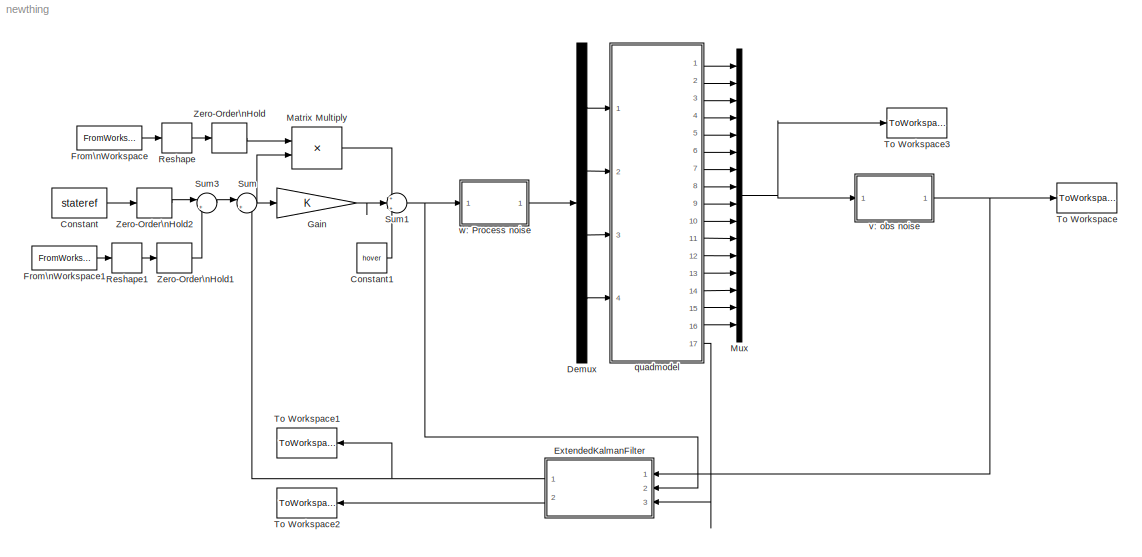
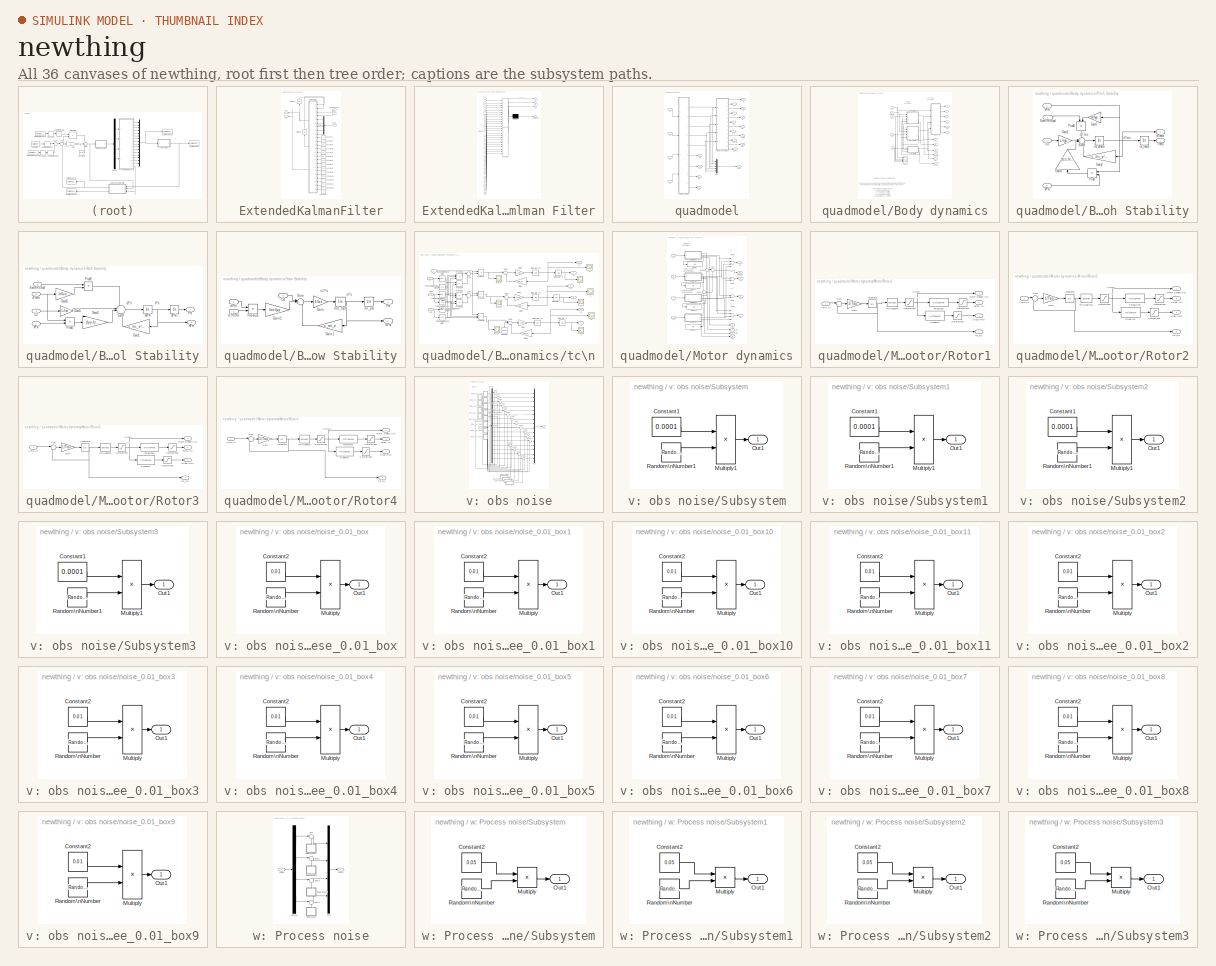
[diagram: thumbnail index - all 36 canvases of the model, root first then tree order]
MODEL newthing
KIND model
BLOCK [Constant] Constant
  Commented = on
  SID = 273
  Value = stateref
BLOCK [Constant] Constant1
  SID = 271
  Value = hover
BLOCK [Demux] Demux
  DisplayOption = bar
  Ports = [1, 4]
  SID = 253
BLOCK [SubSystem] ExtendedKalmanFilter
  Ports = [3, 2]
  RequestExecContextInheritance = off
  SID = 395
BLOCK [Constant] ExtendedKalmanFilter/Constant
  SID = 401
  Value = A
BLOCK [Constant] ExtendedKalmanFilter/Constant1
  SID = 402
  Value = B
BLOCK [Constant] ExtendedKalmanFilter/Constant10
  SID = 567
  Value = Iyy
BLOCK [Constant] ExtendedKalmanFilter/Constant11
  SID = 568
  Value = Ixx
BLOCK [Constant] ExtendedKalmanFilter/Constant12
  SID = 569
  Value = Izz
BLOCK [Constant] ExtendedKalmanFilter/Constant13
  SID = 571
  Value = Jr
BLOCK [Constant] ExtendedKalmanFilter/Constant14
  SID = 572
  Value = L
BLOCK [Constant] ExtendedKalmanFilter/Constant2
  SID = 403
  Value = Cc
BLOCK [Constant] ExtendedKalmanFilter/Constant3
  SID = 407
  Value = G
BLOCK [Constant] ExtendedKalmanFilter/Constant4
  SID = 408
  Value = H
BLOCK [Constant] ExtendedKalmanFilter/Constant5
  SID = 409
  Value = Sv
BLOCK [Constant] ExtendedKalmanFilter/Constant6
  SID = 410
  Value = Sw
BLOCK [Constant] ExtendedKalmanFilter/Constant7
  SID = 564
  Value = dt
BLOCK [Constant] ExtendedKalmanFilter/Constant8
  SID = 565
  Value = ga
BLOCK [Constant] ExtendedKalmanFilter/Constant9
  SID = 566
  Value = m
BLOCK [Demux] ExtendedKalmanFilter/Demux
  DisplayOption = bar
  Outputs = 5
  Ports = [1, 5]
  SID = 562
BLOCK [SubSystem] ExtendedKalmanFilter/Kalman Filter
  ErrorFcn = Stateflow.Translate.translate
  PermitHierarchicalResolution = ExplicitOnly
  Ports = [24, 3]
  RequestExecContextInheritance = off
  SFBlockType = MATLAB Function
  SID = 400
  TreatAsAtomicUnit = on
BLOCK [Demux] ExtendedKalmanFilter/Kalman Filter/ Demux 
  Outputs = 1
  Ports = [1, 1]
  SID = 400::20
BLOCK [S-Function] ExtendedKalmanFilter/Kalman Filter/ SFunction 
  EnableBusSupport = on
  FunctionName = sf_sfun
  PortCounts = [24 4]
  Ports = [24, 4]
  SFcnIsStateOwnerBlock = off
  SFunctionDeploymentMode = off
  SID = 400::19
  Tag = Stateflow S-Function newthing 2
BLOCK [Terminator] ExtendedKalmanFilter/Kalman Filter/ Terminator 
  SID = 400::21
BLOCK [Inport] ExtendedKalmanFilter/Kalman Filter/A
  IconDisplay = Port number
  Port = 10
  SID = 400::1
BLOCK [Inport] ExtendedKalmanFilter/Kalman Filter/B
  IconDisplay = Port number
  Port = 11
  SID = 400::22
BLOCK [Inport] ExtendedKalmanFilter/Kalman Filter/C
  IconDisplay = Port number
  Port = 12
  SID = 400::23
BLOCK [Inport] ExtendedKalmanFilter/Kalman Filter/G
  IconDisplay = Port number
  Port = 13
  SID = 400::29
BLOCK [Inport] ExtendedKalmanFilter/Kalman Filter/H
  IconDisplay = Port number
  Port = 14
  SID = 400::30
BLOCK [Inport] ExtendedKalmanFilter/Kalman Filter/Ixx
  IconDisplay = Port number
  Port = 20
  SID = 400::44
BLOCK [Inport] ExtendedKalmanFilter/Kalman Filter/Iyy
  IconDisplay = Port number
  Port = 21
  SID = 400::45
BLOCK [Inport] ExtendedKalmanFilter/Kalman Filter/Izz
  IconDisplay = Port number
  Port = 22
  SID = 400::46
BLOCK [Inport] ExtendedKalmanFilter/Kalman Filter/Jr
  IconDisplay = Port number
  Port = 23
  SID = 400::47
BLOCK [Outport] ExtendedKalmanFilter/Kalman Filter/K
  IconDisplay = Port number
  Port = 3
  SID = 400::34
BLOCK [Inport] ExtendedKalmanFilter/Kalman Filter/L
  IconDisplay = Port number
  Port = 24
  SID = 400::48
BLOCK [Inport] ExtendedKalmanFilter/Kalman Filter/Omega
  IconDisplay = Port number
  Port = 9
  SID = 400::41
BLOCK [Outport] ExtendedKalmanFilter/Kalman Filter/S_t1_t1
  IconDisplay = Port number
  Port = 2
  SID = 400::33
BLOCK [Inport] ExtendedKalmanFilter/Kalman Filter/S_t_t
  IconDisplay = Port number
  Port = 2
  SID = 400::27
BLOCK [Inport] ExtendedKalmanFilter/Kalman Filter/Sv
  IconDisplay = Port number
  Port = 15
  SID = 400::31
BLOCK [Inport] ExtendedKalmanFilter/Kalman Filter/Sw
  IconDisplay = Port number
  Port = 16
  SID = 400::32
BLOCK [Inport] ExtendedKalmanFilter/Kalman Filter/U1
  IconDisplay = Port number
  Port = 5
  SID = 400::37
BLOCK [Inport] ExtendedKalmanFilter/Kalman Filter/U2
  IconDisplay = Port number
  Port = 6
  SID = 400::38
BLOCK [Inport] ExtendedKalmanFilter/Kalman Filter/U3
  IconDisplay = Port number
  Port = 7
  SID = 400::39
BLOCK [Inport] ExtendedKalmanFilter/Kalman Filter/U4
  IconDisplay = Port number
  Port = 8
  SID = 400::40
BLOCK [Inport] ExtendedKalmanFilter/Kalman Filter/dt
  IconDisplay = Port number
  Port = 17
  SID = 400::36
BLOCK [Inport] ExtendedKalmanFilter/Kalman Filter/ga
  IconDisplay = Port number
  Port = 18
  SID = 400::42
BLOCK [Inport] ExtendedKalmanFilter/Kalman Filter/m
  IconDisplay = Port number
  Port = 19
  SID = 400::43
BLOCK [Inport] ExtendedKalmanFilter/Kalman Filter/u_t
  IconDisplay = Port number
  Port = 4
  SID = 400::35
BLOCK [Outport] ExtendedKalmanFilter/Kalman Filter/x_t1_t1
  IconDisplay = Port number
  SID = 400::5
BLOCK [Inport] ExtendedKalmanFilter/Kalman Filter/x_t_t
  IconDisplay = Port number
  SID = 400::26
BLOCK [Inport] ExtendedKalmanFilter/Kalman Filter/y_t1
  IconDisplay = Port number
  Port = 3
  SID = 400::25
BLOCK [Outport] ExtendedKalmanFilter/Out1
  IconDisplay = Port number
  SID = 397
BLOCK [Outport] ExtendedKalmanFilter/Out2
  IconDisplay = Port number
  Port = 2
  SID = 548
BLOCK [UnitDelay] ExtendedKalmanFilter/Unit Delay
  InitialCondition = S_0_0
  InputProcessing = Elements as channels (sample based)
  SID = 405
  SampleTime = -1
BLOCK [UnitDelay] ExtendedKalmanFilter/Unit Delay1
  InitialCondition = x_0_0
  InputProcessing = Elements as channels (sample based)
  SID = 406
  SampleTime = -1
BLOCK [Inport] ExtendedKalmanFilter/input
  IconDisplay = Port number
  Port = 2
  SID = 398
BLOCK [Inport] ExtendedKalmanFilter/input1
  IconDisplay = Port number
  Port = 3
  SID = 563
BLOCK [Inport] ExtendedKalmanFilter/measurement
  IconDisplay = Port number
  SID = 396
BLOCK [FromWorkspace] From\nWorkspace
  SID = 275
  SampleTime = 0
  VariableName = fb_gain
  ZeroCross = on
BLOCK [FromWorkspace] From\nWorkspace1
  SID = 291
  SampleTime = 0
  VariableName = trajectory
  ZeroCross = on
BLOCK [Gain] Gain
  Commented = on
  Gain = K
  Multiplication = Matrix(K*u) (u vector)
  OutDataTypeStr = Inherit: Inherit via internal rule
  ParamDataTypeStr = Inherit: Inherit via internal rule
  SID = 281
  SaturateOnIntegerOverflow = off
BLOCK [Product] Matrix Multiply
  InputSameDT = off
  Multiplication = Matrix(*)
  OutDataTypeStr = Inherit: Inherit via internal rule
  Ports = [2, 1]
  RndMeth = Floor
  SID = 280
  SaturateOnIntegerOverflow = off
BLOCK [Mux] Mux
  DisplayOption = bar
  Inputs = 16
  Ports = [16, 1]
  SID = 252
BLOCK [Reshape] Reshape
  OutputDimensionality = Customize
  OutputDimensions = [4,16]
  Ports = [1, 1]
  SID = 274
BLOCK [Reshape] Reshape1
  OutputDimensionality = Customize
  OutputDimensions = [16,1]
  Ports = [1, 1]
  SID = 292
BLOCK [Sum] Sum
  IconShape = round
  InputSameDT = off
  Inputs = |+-
  OutDataTypeStr = Inherit: Inherit via internal rule
  Ports = [2, 1]
  SID = 256
  SaturateOnIntegerOverflow = off
BLOCK [Sum] Sum1
  IconShape = round
  InputSameDT = off
  Inputs = +|++
  OutDataTypeStr = Inherit: Inherit via internal rule
  Ports = [3, 1]
  SID = 270
  SaturateOnIntegerOverflow = off
BLOCK [Sum] Sum3
  IconShape = round
  InputSameDT = off
  Inputs = |++
  OutDataTypeStr = Inherit: Inherit via internal rule
  Ports = [2, 1]
  SID = 295
  SaturateOnIntegerOverflow = off
BLOCK [ToWorkspace] To Workspace
  FixptAsFi = on
  MaxDataPoints = inf
  Ports = [1]
  SID = 255
  SampleTime = -1
  Save2DSignal = 3-D array (concatenate along third dimension)
  SaveFormat = Timeseries
  VariableName = state
BLOCK [ToWorkspace] To Workspace1
  FixptAsFi = on
  MaxDataPoints = inf
  Ports = [1]
  SID = 546
  SampleTime = -1
  Save2DSignal = 3-D array (concatenate along third dimension)
  SaveFormat = Timeseries
  VariableName = estimate
BLOCK [ToWorkspace] To Workspace2
  Commented = on
  FixptAsFi = on
  MaxDataPoints = inf
  Ports = [1]
  SID = 549
  SampleTime = -1
  Save2DSignal = 3-D array (concatenate along third dimension)
  SaveFormat = Timeseries
  VariableName = K_gain
BLOCK [ToWorkspace] To Workspace3
  FixptAsFi = on
  MaxDataPoints = inf
  Ports = [1]
  SID = 589
  SampleTime = -1
  Save2DSignal = 3-D array (concatenate along third dimension)
  SaveFormat = Timeseries
  VariableName = nonoise
BLOCK [ZeroOrderHold] Zero-Order\nHold
  SID = 573
  SampleTime = -1
BLOCK [ZeroOrderHold] Zero-Order\nHold1
  SID = 575
  SampleTime = -1
BLOCK [ZeroOrderHold] Zero-Order\nHold2
  Commented = on
  SID = 588
  SampleTime = -1
BLOCK [SubSystem] quadmodel
  Ports = [4, 17]
  RequestExecContextInheritance = off
  SID = 1
BLOCK [SubSystem] quadmodel/Body dynamics
  Ports = [5, 12]
  RequestExecContextInheritance = off
  SID = 6
BLOCK [Inport] quadmodel/Body dynamics/Omega
  IconDisplay = Port number
  Port = 5
  SID = 11
BLOCK [Outport] quadmodel/Body dynamics/Phi
  IconDisplay = Port number
  Port = 7
  SID = 122
BLOCK [SubSystem] quadmodel/Body dynamics/Pitch Stability
  Ports = [4, 2]
  RequestExecContextInheritance = off
  SID = 12
BLOCK [Gain] quadmodel/Body dynamics/Pitch Stability/Gain1
  Gain = L/Iyy
  OutDataTypeStr = Inherit: Inherit via internal rule
  ParamDataTypeStr = Inherit: Inherit via internal rule
  SID = 17
  SaturateOnIntegerOverflow = off
BLOCK [Gain] quadmodel/Body dynamics/Pitch Stability/Gain2
  Gain = c_mi_y/Iyy
  OutDataTypeStr = Inherit: Inherit via internal rule
  ParamDataTypeStr = Inherit: Inherit via internal rule
  SID = 18
  SaturateOnIntegerOverflow = off
BLOCK [Gain] quadmodel/Body dynamics/Pitch Stability/Gain3
  Gain = (Izz-Ixx)/Iyy
  OutDataTypeStr = Inherit: Inherit via internal rule
  ParamDataTypeStr = Inherit: Inherit via internal rule
  SID = 19
  SaturateOnIntegerOverflow = off
BLOCK [Gain] quadmodel/Body dynamics/Pitch Stability/Gain7
  Gain = Jr/Iyy
  OutDataTypeStr = Inherit: Inherit via internal rule
  ParamDataTypeStr = Inherit: Inherit via internal rule
  SID = 20
  SaturateOnIntegerOverflow = off
BLOCK [Product] quadmodel/Body dynamics/Pitch Stability/Prod
  InputSameDT = off
  OutDataTypeStr = Inherit: Inherit via internal rule
  Ports = [2, 1]
  SID = 23
  SaturateOnIntegerOverflow = off
BLOCK [Product] quadmodel/Body dynamics/Pitch Stability/Prod2
  InputSameDT = off
  OutDataTypeStr = Inherit: Inherit via internal rule
  Ports = [2, 1]
  SID = 24
  SaturateOnIntegerOverflow = off
BLOCK [Sum] quadmodel/Body dynamics/Pitch Stability/Sum8
  IconShape = round
  InputSameDT = off
  Inputs = +++-
  OutDataTypeStr = Inherit: Inherit via internal rule
  Ports = [4, 1]
  SID = 25
  SaturateOnIntegerOverflow = off
BLOCK [Inport] quadmodel/Body dynamics/Pitch Stability/SumYRtrSpd
  IconDisplay = Port number
  Port = 2
  SID = 14
BLOCK [Outport] quadmodel/Body dynamics/Pitch Stability/Theta
  IconDisplay = Port number
  SID = 26
BLOCK [Inport] quadmodel/Body dynamics/Pitch Stability/U3
  IconDisplay = Port number
  Port = 3
  SID = 15
BLOCK [Inport] quadmodel/Body dynamics/Pitch Stability/dPhi
  IconDisplay = Port number
  SID = 13
BLOCK [Inport] quadmodel/Body dynamics/Pitch Stability/dPsi
  IconDisplay = Port number
  Port = 4
  SID = 16
BLOCK [Outport] quadmodel/Body dynamics/Pitch Stability/dTheta
  IconDisplay = Port number
  Port = 2
  SID = 27
BLOCK [Integrator] quadmodel/Body dynamics/Pitch Stability/int_dtheta
  InitialCondition = dtheta_0
  Ports = [1, 1]
  SID = 21
BLOCK [Integrator] quadmodel/Body dynamics/Pitch Stability/int_theta
  InitialCondition = theta_0
  LowerSaturationLimit = -pi/2
  Ports = [1, 1]
  SID = 22
  UpperSaturationLimit = pi/2
BLOCK [Outport] quadmodel/Body dynamics/Psi
  IconDisplay = Port number
  Port = 11
  SID = 124
BLOCK [SubSystem] quadmodel/Body dynamics/Roll Stability
  Ports = [4, 2]
  RequestExecContextInheritance = off
  SID = 30
BLOCK [Gain] quadmodel/Body dynamics/Roll Stability/Gain1
  Gain = c_mi_x/Ixx
  OutDataTypeStr = Inherit: Inherit via internal rule
  ParamDataTypeStr = Inherit: Inherit via internal rule
  SID = 35
  SaturateOnIntegerOverflow = off
BLOCK [Gain] quadmodel/Body dynamics/Roll Stability/Gain3
  Gain = (Iyy-Izz)/Ixx
  OutDataTypeStr = Inherit: Inherit via internal rule
  ParamDataTypeStr = Inherit: Inherit via internal rule
  SID = 36
  SaturateOnIntegerOverflow = off
BLOCK [Gain] quadmodel/Body dynamics/Roll Stability/Gain5
  Gain = L/Ixx
  OutDataTypeStr = Inherit: Inherit via internal rule
  ParamDataTypeStr = Inherit: Inherit via internal rule
  SID = 37
  SaturateOnIntegerOverflow = off
BLOCK [Gain] quadmodel/Body dynamics/Roll Stability/Gain8
  Gain = Jr/Ixx
  OutDataTypeStr = Inherit: Inherit via internal rule
  ParamDataTypeStr = Inherit: Inherit via internal rule
  SID = 38
  SaturateOnIntegerOverflow = off
BLOCK [Outport] quadmodel/Body dynamics/Roll Stability/Phi
  IconDisplay = Port number
  SID = 44
BLOCK [Product] quadmodel/Body dynamics/Roll Stability/Prod1
  InputSameDT = off
  OutDataTypeStr = Inherit: Inherit via internal rule
  Ports = [2, 1]
  SID = 39
  SaturateOnIntegerOverflow = off
BLOCK [Product] quadmodel/Body dynamics/Roll Stability/Prod3
  InputSameDT = off
  OutDataTypeStr = Inherit: Inherit via internal rule
  Ports = [2, 1]
  SID = 40
  SaturateOnIntegerOverflow = off
BLOCK [Sum] quadmodel/Body dynamics/Roll Stability/Sum9
  IconShape = round
  InputSameDT = off
  Inputs = -++-
  OutDataTypeStr = Inherit: Inherit via internal rule
  Ports = [4, 1]
  SID = 41
  SaturateOnIntegerOverflow = off
BLOCK [Inport] quadmodel/Body dynamics/Roll Stability/SumXRtrSpd
  IconDisplay = Port number
  SID = 31
BLOCK [Inport] quadmodel/Body dynamics/Roll Stability/U2
  IconDisplay = Port number
  Port = 2
  SID = 32
BLOCK [Integrator] quadmodel/Body dynamics/Roll Stability/d2Phi
  InitialCondition = dfi_0
  Ports = [1, 1]
  SID = 42
BLOCK [Outport] quadmodel/Body dynamics/Roll Stability/dPhi
  IconDisplay = Port number
  Port = 2
  SID = 45
BLOCK [Integrator] quadmodel/Body dynamics/Roll Stability/dPhi1
  InitialCondition = fi_0
  LowerSaturationLimit = -pi/2
  Ports = [1, 1]
  SID = 43
  UpperSaturationLimit = pi/2
BLOCK [Inport] quadmodel/Body dynamics/Roll Stability/dPsi
  IconDisplay = Port number
  Port = 4
  SID = 34
BLOCK [Inport] quadmodel/Body dynamics/Roll Stability/dTheta
  IconDisplay = Port number
  Port = 3
  SID = 33
BLOCK [Outport] quadmodel/Body dynamics/Theta
  IconDisplay = Port number
  Port = 9
  SID = 123
BLOCK [Scope] quadmodel/Body dynamics/Torque
  Floating = off
  NumInputPorts = 4
  Ports = [4]
  SID = 48
  ScopeSpecificationString = C++SS(StrPVP('Location','[772, 74, 1096, 662]'),StrPVP('Open','off'),StrPVP('ZoomMode','yonly'),MxPVP('AxesTitles',53,'struct(''axes1'',''%<SignalLabel>'',''axes2'',''%<SignalLabel>'',''axes3'',''%<SignalLabel>'',''axes4'',''%<SignalLabel>'')'),StrPVP('YMin','4.9725~-5~-5~-5'),StrPVP('YMax','5.015~5~5~5'),StrPVP('SaveName','ScopeData17'),StrPVP('DataFormat','StructureWithTime'),StrPVP('LimitDataPo...<+111ch>
BLOCK [Inport] quadmodel/Body dynamics/U1
  IconDisplay = Port number
  SID = 7
BLOCK [Inport] quadmodel/Body dynamics/U2
  IconDisplay = Port number
  Port = 2
  SID = 8
BLOCK [Inport] quadmodel/Body dynamics/U3
  IconDisplay = Port number
  Port = 3
  SID = 9
BLOCK [Inport] quadmodel/Body dynamics/U4
  IconDisplay = Port number
  Port = 4
  SID = 10
BLOCK [Outport] quadmodel/Body dynamics/X
  IconDisplay = Port number
  SID = 119
BLOCK [Outport] quadmodel/Body dynamics/Y
  IconDisplay = Port number
  Port = 3
  SID = 120
BLOCK [SubSystem] quadmodel/Body dynamics/Yaw Stability
  Ports = [3, 2]
  RequestExecContextInheritance = off
  SID = 50
BLOCK [Gain] quadmodel/Body dynamics/Yaw Stability/Gain
  Gain = 1/Izz
  OutDataTypeStr = Inherit: Inherit via internal rule
  ParamDataTypeStr = Inherit: Inherit via internal rule
  SID = 54
  SaturateOnIntegerOverflow = off
BLOCK [Gain] quadmodel/Body dynamics/Yaw Stability/Gain1
  Gain = c_mi_z
  OutDataTypeStr = Inherit: Inherit via internal rule
  ParamDataTypeStr = Inherit: Inherit via internal rule
  SID = 55
  SaturateOnIntegerOverflow = off
BLOCK [Gain] quadmodel/Body dynamics/Yaw Stability/Gain2
  Gain = Ixx-Iyy
  OutDataTypeStr = Inherit: Inherit via internal rule
  ParamDataTypeStr = Inherit: Inherit via internal rule
  SID = 56
  SaturateOnIntegerOverflow = off
BLOCK [Product] quadmodel/Body dynamics/Yaw Stability/Product
  InputSameDT = off
  OutDataTypeStr = Inherit: Inherit via internal rule
  Ports = [2, 1]
  SID = 59
  SaturateOnIntegerOverflow = off
BLOCK [Outport] quadmodel/Body dynamics/Yaw Stability/Psi
  IconDisplay = Port number
  SID = 61
BLOCK [Sum] quadmodel/Body dynamics/Yaw Stability/Sum
  IconShape = round
  InputSameDT = off
  Inputs = |++-
  OutDataTypeStr = Inherit: Inherit via internal rule
  Ports = [3, 1]
  SID = 60
  SaturateOnIntegerOverflow = off
BLOCK [Inport] quadmodel/Body dynamics/Yaw Stability/U4
  IconDisplay = Port number
  SID = 51
BLOCK [Inport] quadmodel/Body dynamics/Yaw Stability/dPhi
  IconDisplay = Port number
  Port = 2
  SID = 52
BLOCK [Outport] quadmodel/Body dynamics/Yaw Stability/dPsi
  IconDisplay = Port number
  Port = 2
  SID = 62
BLOCK [Inport] quadmodel/Body dynamics/Yaw Stability/dTheta
  IconDisplay = Port number
  Port = 3
  SID = 53
BLOCK [Integrator] quadmodel/Body dynamics/Yaw Stability/ind_dpsi
  InitialCondition = dpsi_0
  Ports = [1, 1]
  SID = 57
BLOCK [Integrator] quadmodel/Body dynamics/Yaw Stability/int_psi
  InitialCondition = psi_0
  Ports = [1, 1]
  SID = 58
BLOCK [Outport] quadmodel/Body dynamics/Z
  IconDisplay = Port number
  Port = 5
  SID = 121
BLOCK [Outport] quadmodel/Body dynamics/dPhi
  IconDisplay = Port number
  Port = 8
  SID = 239
BLOCK [Outport] quadmodel/Body dynamics/dPsi
  IconDisplay = Port number
  Port = 12
  SID = 241
BLOCK [Outport] quadmodel/Body dynamics/dTheta
  IconDisplay = Port number
  Port = 10
  SID = 240
BLOCK [Outport] quadmodel/Body dynamics/dx
  IconDisplay = Port number
  Port = 2
  SID = 236
BLOCK [Outport] quadmodel/Body dynamics/dy
  IconDisplay = Port number
  Port = 4
  SID = 237
BLOCK [Outport] quadmodel/Body dynamics/dz
  IconDisplay = Port number
  Port = 6
  SID = 238
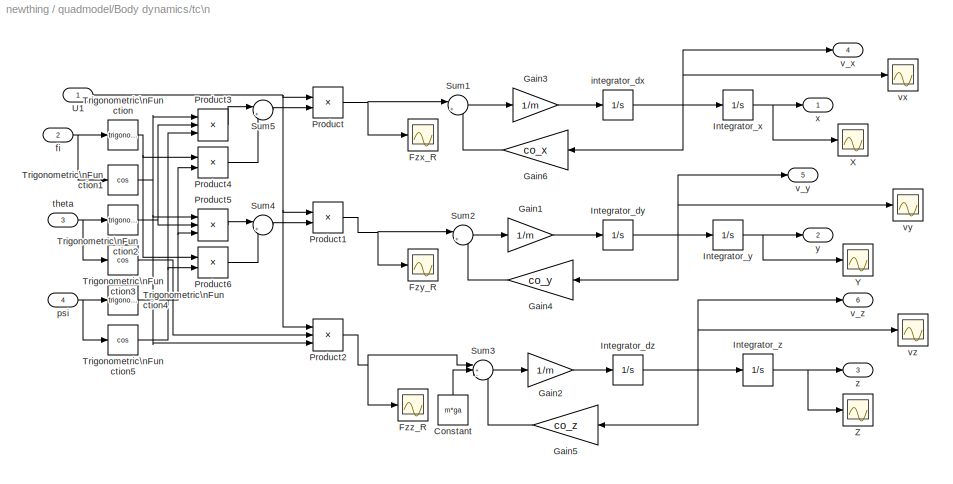
BLOCK [SubSystem] quadmodel/Body dynamics/tc\n
  Ports = [4, 6]
  RequestExecContextInheritance = off
  SID = 65
BLOCK [Constant] quadmodel/Body dynamics/tc\n/Constant
  SID = 70
  Value = m*ga
BLOCK [Scope] quadmodel/Body dynamics/tc\n/Fzx_R
  Floating = off
  NumInputPorts = 1
  Ports = [1]
  SID = 71
  ScopeSpecificationString = C++SS(StrPVP('Location','[188, 355, 512, 594]'),StrPVP('Open','off'),StrPVP('ZoomMode','xonly'),MxPVP('AxesTitles',53,'struct(''axes1'',''%<SignalLabel>'')'),StrPVP('SaveName','ScopeData10'),StrPVP('DataFormat','StructureWithTime'),StrPVP('LimitDataPoints','off'),StrPVP('BlockParamSampleTime','0'),StrPVP('Decimation','1'),StrPVP('BlockParamSampleInput','off'))
BLOCK [Scope] quadmodel/Body dynamics/tc\n/Fzy_R
  Floating = off
  NumInputPorts = 1
  Ports = [1]
  SID = 72
  ScopeSpecificationString = C++SS(StrPVP('Location','[178, 355, 502, 594]'),StrPVP('Open','off'),StrPVP('ZoomMode','xonly'),MxPVP('AxesTitles',53,'struct(''axes1'',''%<SignalLabel>'')'),StrPVP('SaveName','ScopeData24'),StrPVP('DataFormat','StructureWithTime'),StrPVP('LimitDataPoints','off'),StrPVP('BlockParamSampleTime','0'),StrPVP('Decimation','1'),StrPVP('BlockParamSampleInput','off'))
BLOCK [Scope] quadmodel/Body dynamics/tc\n/Fzz_R
  Floating = off
  NumInputPorts = 1
  Ports = [1]
  SID = 73
  ScopeSpecificationString = C++SS(StrPVP('Location','[108, 519, 432, 758]'),StrPVP('Open','off'),StrPVP('ZoomMode','yonly'),MxPVP('AxesTitles',53,'struct(''axes1'',''%<SignalLabel>'')'),StrPVP('YMin','4.9725'),StrPVP('YMax','5.015'),StrPVP('SaveName','ScopeData23'),StrPVP('DataFormat','StructureWithTime'),StrPVP('LimitDataPoints','off'),StrPVP('BlockParamSampleTime','0'),StrPVP('Decimation','1'),StrPVP('BlockParamSampleInput...<+9ch>
BLOCK [Gain] quadmodel/Body dynamics/tc\n/Gain1
  Gain = 1/m
  OutDataTypeStr = Inherit: Inherit via internal rule
  ParamDataTypeStr = Inherit: Inherit via internal rule
  SID = 74
  SaturateOnIntegerOverflow = off
BLOCK [Gain] quadmodel/Body dynamics/tc\n/Gain2
  Gain = 1/m
  OutDataTypeStr = Inherit: Inherit via internal rule
  ParamDataTypeStr = Inherit: Inherit via internal rule
  SID = 75
  SaturateOnIntegerOverflow = off
BLOCK [Gain] quadmodel/Body dynamics/tc\n/Gain3
  Gain = 1/m
  OutDataTypeStr = Inherit: Inherit via internal rule
  ParamDataTypeStr = Inherit: Inherit via internal rule
  SID = 76
  SaturateOnIntegerOverflow = off
BLOCK [Gain] quadmodel/Body dynamics/tc\n/Gain4
  Gain = co_y
  OutDataTypeStr = Inherit: Inherit via internal rule
  ParamDataTypeStr = Inherit: Inherit via internal rule
  SID = 77
  SaturateOnIntegerOverflow = off
BLOCK [Gain] quadmodel/Body dynamics/tc\n/Gain5
  Gain = co_z
  OutDataTypeStr = Inherit: Inherit via internal rule
  ParamDataTypeStr = Inherit: Inherit via internal rule
  SID = 78
  SaturateOnIntegerOverflow = off
BLOCK [Gain] quadmodel/Body dynamics/tc\n/Gain6
  Gain = co_x
  OutDataTypeStr = Inherit: Inherit via internal rule
  ParamDataTypeStr = Inherit: Inherit via internal rule
  SID = 79
  SaturateOnIntegerOverflow = off
BLOCK [Integrator] quadmodel/Body dynamics/tc\n/Integrator_dy
  InitialCondition = dy_0
  LimitOutput = on
  LowerSaturationLimit = -10
  Ports = [1, 1]
  SID = 80
  UpperSaturationLimit = 10
BLOCK [Integrator] quadmodel/Body dynamics/tc\n/Integrator_dz
  InitialCondition = dz_0
  LimitOutput = on
  LowerSaturationLimit = -10
  Ports = [1, 1]
  SID = 81
  UpperSaturationLimit = 10
BLOCK [Integrator] quadmodel/Body dynamics/tc\n/Integrator_x
  InitialCondition = x_0
  Ports = [1, 1]
  SID = 82
BLOCK [Integrator] quadmodel/Body dynamics/tc\n/Integrator_y
  InitialCondition = y_0
  Ports = [1, 1]
  SID = 83
BLOCK [Integrator] quadmodel/Body dynamics/tc\n/Integrator_z
  InitialCondition = z_0
  Ports = [1, 1]
  SID = 84
BLOCK [Product] quadmodel/Body dynamics/tc\n/Product
  InputSameDT = off
  OutDataTypeStr = Inherit: Inherit via internal rule
  Ports = [2, 1]
  SID = 85
  SaturateOnIntegerOverflow = off
BLOCK [Product] quadmodel/Body dynamics/tc\n/Product1
  InputSameDT = off
  OutDataTypeStr = Inherit: Inherit via internal rule
  Ports = [2, 1]
  SID = 86
  SaturateOnIntegerOverflow = off
BLOCK [Product] quadmodel/Body dynamics/tc\n/Product2
  InputSameDT = off
  Inputs = 3
  OutDataTypeStr = Inherit: Inherit via internal rule
  Ports = [3, 1]
  SID = 87
  SaturateOnIntegerOverflow = off
BLOCK [Product] quadmodel/Body dynamics/tc\n/Product3
  InputSameDT = off
  Inputs = 3
  OutDataTypeStr = Inherit: Inherit via internal rule
  Ports = [3, 1]
  SID = 88
  SaturateOnIntegerOverflow = off
BLOCK [Product] quadmodel/Body dynamics/tc\n/Product4
  InputSameDT = off
  OutDataTypeStr = Inherit: Inherit via internal rule
  Ports = [2, 1]
  SID = 89
  SaturateOnIntegerOverflow = off
BLOCK [Product] quadmodel/Body dynamics/tc\n/Product5
  InputSameDT = off
  Inputs = 3
  OutDataTypeStr = Inherit: Inherit via internal rule
  Ports = [3, 1]
  SID = 90
  SaturateOnIntegerOverflow = off
BLOCK [Product] quadmodel/Body dynamics/tc\n/Product6
  InputSameDT = off
  OutDataTypeStr = Inherit: Inherit via internal rule
  Ports = [2, 1]
  SID = 91
  SaturateOnIntegerOverflow = off
BLOCK [Sum] quadmodel/Body dynamics/tc\n/Sum1
  IconShape = round
  InputSameDT = off
  Inputs = |+-
  OutDataTypeStr = Inherit: Inherit via internal rule
  Ports = [2, 1]
  SID = 92
  SaturateOnIntegerOverflow = off
BLOCK [Sum] quadmodel/Body dynamics/tc\n/Sum2
  IconShape = round
  InputSameDT = off
  Inputs = |+-
  OutDataTypeStr = Inherit: Inherit via internal rule
  Ports = [2, 1]
  SID = 93
  SaturateOnIntegerOverflow = off
BLOCK [Sum] quadmodel/Body dynamics/tc\n/Sum3
  IconShape = round
  InputSameDT = off
  Inputs = |+--
  OutDataTypeStr = Inherit: Inherit via internal rule
  Ports = [3, 1]
  SID = 94
  SaturateOnIntegerOverflow = off
BLOCK [Sum] quadmodel/Body dynamics/tc\n/Sum4
  IconShape = round
  InputSameDT = off
  Inputs = |+-
  OutDataTypeStr = Inherit: Inherit via internal rule
  Ports = [2, 1]
  SID = 95
  SaturateOnIntegerOverflow = off
BLOCK [Sum] quadmodel/Body dynamics/tc\n/Sum5
  IconShape = round
  InputSameDT = off
  Inputs = |++
  OutDataTypeStr = Inherit: Inherit via internal rule
  Ports = [2, 1]
  SID = 96
  SaturateOnIntegerOverflow = off
BLOCK [Trigonometry] quadmodel/Body dynamics/tc\n/Trigonometric\nFunction
  Ports = [1, 1]
  SID = 97
BLOCK [Trigonometry] quadmodel/Body dynamics/tc\n/Trigonometric\nFunction1
  Operator = cos
  Ports = [1, 1]
  SID = 98
BLOCK [Trigonometry] quadmodel/Body dynamics/tc\n/Trigonometric\nFunction2
  Ports = [1, 1]
  SID = 99
BLOCK [Trigonometry] quadmodel/Body dynamics/tc\n/Trigonometric\nFunction3
  Operator = cos
  Ports = [1, 1]
  SID = 100
BLOCK [Trigonometry] quadmodel/Body dynamics/tc\n/Trigonometric\nFunction4
  Ports = [1, 1]
  SID = 101
BLOCK [Trigonometry] quadmodel/Body dynamics/tc\n/Trigonometric\nFunction5
  Operator = cos
  Ports = [1, 1]
  SID = 102
BLOCK [Inport] quadmodel/Body dynamics/tc\n/U1
  IconDisplay = Port number
  SID = 66
BLOCK [Scope] quadmodel/Body dynamics/tc\n/X
  Floating = off
  NumInputPorts = 1
  Ports = [1]
  SID = 103
  ScopeSpecificationString = C++SS(StrPVP('Location','[164, 205, 488, 444]'),StrPVP('Open','off'),StrPVP('ZoomMode','xonly'),MxPVP('AxesTitles',53,'struct(''axes1'',''%<SignalLabel>'')'),StrPVP('YMin','-95'),StrPVP('YMax','-30'),StrPVP('SaveName','ScopeData14'),StrPVP('DataFormat','StructureWithTime'),StrPVP('LimitDataPoints','off'),StrPVP('BlockParamSampleTime','0'),StrPVP('Decimation','1'),StrPVP('BlockParamSampleInput','of...<+4ch>
BLOCK [Scope] quadmodel/Body dynamics/tc\n/Y
  Floating = off
  NumInputPorts = 1
  Ports = [1]
  SID = 104
  ScopeSpecificationString = C++SS(StrPVP('Location','[164, 205, 488, 444]'),StrPVP('Open','off'),StrPVP('ZoomMode','xonly'),MxPVP('AxesTitles',53,'struct(''axes1'',''%<SignalLabel>'')'),StrPVP('YMin','-95'),StrPVP('YMax','-30'),StrPVP('SaveName','ScopeData11'),StrPVP('DataFormat','StructureWithTime'),StrPVP('LimitDataPoints','off'),StrPVP('BlockParamSampleTime','0'),StrPVP('Decimation','1'),StrPVP('BlockParamSampleInput','of...<+4ch>
BLOCK [Scope] quadmodel/Body dynamics/tc\n/Z
  Floating = off
  NumInputPorts = 1
  Ports = [1]
  SID = 105
  ScopeSpecificationString = C++SS(StrPVP('Location','[441, 519, 765, 758]'),StrPVP('Open','off'),StrPVP('ZoomMode','xonly'),MxPVP('AxesTitles',53,'struct(''axes1'',''%<SignalLabel>'')'),StrPVP('YMin','-95'),StrPVP('YMax','-30'),StrPVP('SaveName','ScopeData34'),StrPVP('DataFormat','StructureWithTime'),StrPVP('LimitDataPoints','off'),StrPVP('BlockParamSampleTime','0'),StrPVP('Decimation','1'),StrPVP('BlockParamSampleInput','of...<+4ch>
BLOCK [Inport] quadmodel/Body dynamics/tc\n/fi
  IconDisplay = Port number
  Port = 2
  SID = 67
BLOCK [Integrator] quadmodel/Body dynamics/tc\n/integrator_dx
  InitialCondition = dx_0
  LimitOutput = on
  LowerSaturationLimit = -10
  Ports = [1, 1]
  SID = 106
  UpperSaturationLimit = 10
BLOCK [Inport] quadmodel/Body dynamics/tc\n/psi
  IconDisplay = Port number
  Port = 4
  SID = 69
BLOCK [Inport] quadmodel/Body dynamics/tc\n/theta
  IconDisplay = Port number
  Port = 3
  SID = 68
BLOCK [Outport] quadmodel/Body dynamics/tc\n/v_x
  IconDisplay = Port number
  Port = 4
  SID = 113
BLOCK [Outport] quadmodel/Body dynamics/tc\n/v_y
  IconDisplay = Port number
  Port = 5
  SID = 114
BLOCK [Outport] quadmodel/Body dynamics/tc\n/v_z
  IconDisplay = Port number
  Port = 6
  SID = 115
BLOCK [Scope] quadmodel/Body dynamics/tc\n/vx
  Floating = off
  NumInputPorts = 1
  Ports = [1]
  SID = 107
  ScopeSpecificationString = C++SS(StrPVP('Location','[51, 268, 479, 593]'),StrPVP('Open','off'),StrPVP('ZoomMode','xonly'),MxPVP('AxesTitles',53,'struct(''axes1'',''%<SignalLabel>'')'),StrPVP('SaveName','ScopeData12'),StrPVP('DataFormat','StructureWithTime'),StrPVP('BlockParamSampleTime','0'),StrPVP('LimitDataPoints','on'),StrPVP('Decimation','1'),StrPVP('BlockParamSampleInput','off'))
BLOCK [Scope] quadmodel/Body dynamics/tc\n/vy
  Floating = off
  NumInputPorts = 1
  Ports = [1]
  SID = 108
  ScopeSpecificationString = C++SS(StrPVP('Location','[51, 268, 479, 593]'),StrPVP('Open','off'),StrPVP('ZoomMode','xonly'),MxPVP('AxesTitles',53,'struct(''axes1'',''%<SignalLabel>'')'),StrPVP('SaveName','ScopeData9'),StrPVP('DataFormat','StructureWithTime'),StrPVP('BlockParamSampleTime','0'),StrPVP('LimitDataPoints','on'),StrPVP('Decimation','1'),StrPVP('BlockParamSampleInput','off'))
BLOCK [Scope] quadmodel/Body dynamics/tc\n/vz
  Floating = off
  NumInputPorts = 1
  Ports = [1]
  SID = 109
  ScopeSpecificationString = C++SS(StrPVP('Location','[51, 268, 479, 593]'),StrPVP('Open','off'),StrPVP('ZoomMode','xonly'),MxPVP('AxesTitles',53,'struct(''axes1'',''%<SignalLabel>'')'),StrPVP('SaveName','ScopeData25'),StrPVP('DataFormat','StructureWithTime'),StrPVP('BlockParamSampleTime','0'),StrPVP('LimitDataPoints','on'),StrPVP('Decimation','1'),StrPVP('BlockParamSampleInput','off'))
BLOCK [Outport] quadmodel/Body dynamics/tc\n/x
  IconDisplay = Port number
  SID = 110
BLOCK [Outport] quadmodel/Body dynamics/tc\n/y
  IconDisplay = Port number
  Port = 2
  SID = 111
BLOCK [Outport] quadmodel/Body dynamics/tc\n/z
  IconDisplay = Port number
  Port = 3
  SID = 112
BLOCK [SubSystem] quadmodel/Motor dynamics
  Ports = [4, 9]
  RequestExecContextInheritance = off
  SID = 130
BLOCK [Display] quadmodel/Motor dynamics/Display
  Decimation = 1
  Ports = [1]
  SID = 135
BLOCK [Display] quadmodel/Motor dynamics/Display1
  Decimation = 1
  Ports = [1]
  SID = 136
BLOCK [Display] quadmodel/Motor dynamics/Display2
  Decimation = 1
  Ports = [1]
  SID = 137
BLOCK [Display] quadmodel/Motor dynamics/Display3
  Decimation = 1
  Ports = [1]
  SID = 138
BLOCK [SubSystem] quadmodel/Motor dynamics/Motor//Rotor1
  Ports = [1, 4]
  RequestExecContextInheritance = off
  SID = 139
BLOCK [Outport] quadmodel/Motor dynamics/Motor//Rotor1/Drag (Nm)
  IconDisplay = Port number
  Port = 3
  SID = 152
BLOCK [Fcn] quadmodel/Motor dynamics/Motor//Rotor1/DragFcn1
  Expr = f*u^2+g*u+h
  SID = 141
BLOCK [Gain] quadmodel/Motor dynamics/Motor//Rotor1/Gain
  Gain = 1/Tau
  OutDataTypeStr = Inherit: Inherit via internal rule
  ParamDataTypeStr = Inherit: Inherit via internal rule
  SID = 142
  SaturateOnIntegerOverflow = off
BLOCK [Integrator] quadmodel/Motor dynamics/Motor//Rotor1/Integrator
  InitialCondition = d_omega_R10
  Ports = [1, 1]
  SID = 143
BLOCK [Outport] quadmodel/Motor dynamics/Motor//Rotor1/Rotor Speed (r//s)
  IconDisplay = Port number
  SID = 150
BLOCK [Fcn] quadmodel/Motor dynamics/Motor//Rotor1/RtrSpdFcn1
  Expr = a1*u+b1
  SID = 144
BLOCK [Saturate] quadmodel/Motor dynamics/Motor//Rotor1/Saturation3
  InputPortMap = u0
  LowerLimit = 0
  Ports = [1, 1]
  SID = 145
  UpperLimit = 15
BLOCK [Saturate] quadmodel/Motor dynamics/Motor//Rotor1/Saturation4
  InputPortMap = u0
  LowerLimit = 0
  Ports = [1, 1]
  SID = 146
  UpperLimit = 250
BLOCK [Saturate] quadmodel/Motor dynamics/Motor//Rotor1/Saturation8
  InputPortMap = u0
  LowerLimit = 0
  Ports = [1, 1]
  SID = 147
  UpperLimit = 1
BLOCK [Sum] quadmodel/Motor dynamics/Motor//Rotor1/Sum
  IconShape = round
  InputSameDT = off
  Inputs = |+-
  OutDataTypeStr = Inherit: Inherit via internal rule
  Ports = [2, 1]
  SID = 148
  SaturateOnIntegerOverflow = off
BLOCK [Outport] quadmodel/Motor dynamics/Motor//Rotor1/Thrust (N)
  IconDisplay = Port number
  Port = 2
  SID = 151
BLOCK [Fcn] quadmodel/Motor dynamics/Motor//Rotor1/ThrustFcn1
  Expr = c*u^2+d*u+e
  SID = 149
BLOCK [Inport] quadmodel/Motor dynamics/Motor//Rotor1/Volts In
  IconDisplay = Port number
  SID = 140
BLOCK [Outport] quadmodel/Motor dynamics/Motor//Rotor1/int_R1
  IconDisplay = Port number
  Port = 4
  SID = 262
BLOCK [SubSystem] quadmodel/Motor dynamics/Motor//Rotor2
  Ports = [1, 4]
  RequestExecContextInheritance = off
  SID = 154
BLOCK [Outport] quadmodel/Motor dynamics/Motor//Rotor2/Drag (Nm)
  IconDisplay = Port number
  Port = 3
  SID = 167
BLOCK [Fcn] quadmodel/Motor dynamics/Motor//Rotor2/DragFcn1
  Expr = f*u^2+g*u+h
  SID = 156
BLOCK [Gain] quadmodel/Motor dynamics/Motor//Rotor2/Gain
  Gain = 1/Tau
  OutDataTypeStr = Inherit: Inherit via internal rule
  ParamDataTypeStr = Inherit: Inherit via internal rule
  SID = 157
  SaturateOnIntegerOverflow = off
BLOCK [Integrator] quadmodel/Motor dynamics/Motor//Rotor2/Integrator
  InitialCondition = d_omega_R20
  Ports = [1, 1]
  SID = 158
BLOCK [Outport] quadmodel/Motor dynamics/Motor//Rotor2/Rotor Speed (r//s)
  IconDisplay = Port number
  SID = 165
BLOCK [Fcn] quadmodel/Motor dynamics/Motor//Rotor2/RtrSpdFcn1
  Expr = a2*u+b2
  SID = 159
BLOCK [Saturate] quadmodel/Motor dynamics/Motor//Rotor2/Saturation3
  InputPortMap = u0
  LowerLimit = 0
  Ports = [1, 1]
  SID = 160
  UpperLimit = 15
BLOCK [Saturate] quadmodel/Motor dynamics/Motor//Rotor2/Saturation4
  InputPortMap = u0
  LowerLimit = 0
  Ports = [1, 1]
  SID = 161
  UpperLimit = 250
BLOCK [Saturate] quadmodel/Motor dynamics/Motor//Rotor2/Saturation8
  InputPortMap = u0
  LowerLimit = 0
  Ports = [1, 1]
  SID = 162
  UpperLimit = 1
BLOCK [Sum] quadmodel/Motor dynamics/Motor//Rotor2/Sum
  IconShape = round
  InputSameDT = off
  Inputs = |+-
  OutDataTypeStr = Inherit: Inherit via internal rule
  Ports = [2, 1]
  SID = 163
  SaturateOnIntegerOverflow = off
BLOCK [Outport] quadmodel/Motor dynamics/Motor//Rotor2/Thrust (N)
  IconDisplay = Port number
  Port = 2
  SID = 166
BLOCK [Fcn] quadmodel/Motor dynamics/Motor//Rotor2/ThrustFcn1
  Expr = c*u^2+d*u+e
  SID = 164
BLOCK [Inport] quadmodel/Motor dynamics/Motor//Rotor2/Volts In
  IconDisplay = Port number
  SID = 155
BLOCK [Outport] quadmodel/Motor dynamics/Motor//Rotor2/int_R2
  IconDisplay = Port number
  Port = 4
  SID = 263
BLOCK [SubSystem] quadmodel/Motor dynamics/Motor//Rotor3
  Ports = [1, 4]
  RequestExecContextInheritance = off
  SID = 169
BLOCK [Outport] quadmodel/Motor dynamics/Motor//Rotor3/Drag (Nm)
  IconDisplay = Port number
  Port = 3
  SID = 182
BLOCK [Fcn] quadmodel/Motor dynamics/Motor//Rotor3/DragFcn1
  Expr = f*u^2+g*u+h
  SID = 171
BLOCK [Gain] quadmodel/Motor dynamics/Motor//Rotor3/Gain
  Gain = 1/Tau
  OutDataTypeStr = Inherit: Inherit via internal rule
  ParamDataTypeStr = Inherit: Inherit via internal rule
  SID = 172
  SaturateOnIntegerOverflow = off
BLOCK [Integrator] quadmodel/Motor dynamics/Motor//Rotor3/Integrator
  InitialCondition = d_omega_R30
  Ports = [1, 1]
  SID = 173
BLOCK [Outport] quadmodel/Motor dynamics/Motor//Rotor3/Rotor Speed (r//s)
  IconDisplay = Port number
  SID = 180
BLOCK [Fcn] quadmodel/Motor dynamics/Motor//Rotor3/RtrSpdFcn1
  Expr = a3*u+b3
  SID = 174
BLOCK [Saturate] quadmodel/Motor dynamics/Motor//Rotor3/Saturation3
  InputPortMap = u0
  LowerLimit = 0
  Ports = [1, 1]
  SID = 175
  UpperLimit = 15
BLOCK [Saturate] quadmodel/Motor dynamics/Motor//Rotor3/Saturation4
  InputPortMap = u0
  LowerLimit = 0
  Ports = [1, 1]
  SID = 176
  UpperLimit = 250
BLOCK [Saturate] quadmodel/Motor dynamics/Motor//Rotor3/Saturation8
  InputPortMap = u0
  LowerLimit = 0
  Ports = [1, 1]
  SID = 177
  UpperLimit = 1
BLOCK [Sum] quadmodel/Motor dynamics/Motor//Rotor3/Sum
  IconShape = round
  InputSameDT = off
  Inputs = |+-
  OutDataTypeStr = Inherit: Inherit via internal rule
  Ports = [2, 1]
  SID = 178
  SaturateOnIntegerOverflow = off
BLOCK [Outport] quadmodel/Motor dynamics/Motor//Rotor3/Thrust (N)
  IconDisplay = Port number
  Port = 2
  SID = 181
BLOCK [Fcn] quadmodel/Motor dynamics/Motor//Rotor3/ThrustFcn1
  Expr = c*u^2+d*u+e
  SID = 179
BLOCK [Inport] quadmodel/Motor dynamics/Motor//Rotor3/Volts In
  IconDisplay = Port number
  SID = 170
BLOCK [Outport] quadmodel/Motor dynamics/Motor//Rotor3/int_R3
  IconDisplay = Port number
  Port = 4
  SID = 264
BLOCK [SubSystem] quadmodel/Motor dynamics/Motor//Rotor4
  Ports = [1, 4]
  RequestExecContextInheritance = off
  SID = 184
BLOCK [Outport] quadmodel/Motor dynamics/Motor//Rotor4/Drag (Nm)
  IconDisplay = Port number
  Port = 3
  SID = 197
BLOCK [Fcn] quadmodel/Motor dynamics/Motor//Rotor4/DragFcn1
  Expr = f*u^2+g*u+h
  SID = 186
BLOCK [Gain] quadmodel/Motor dynamics/Motor//Rotor4/Gain
  Gain = 1/Tau
  OutDataTypeStr = Inherit: Inherit via internal rule
  ParamDataTypeStr = Inherit: Inherit via internal rule
  SID = 187
  SaturateOnIntegerOverflow = off
BLOCK [Integrator] quadmodel/Motor dynamics/Motor//Rotor4/Integrator
  InitialCondition = d_omega_R40
  Ports = [1, 1]
  SID = 188
BLOCK [Outport] quadmodel/Motor dynamics/Motor//Rotor4/Rotor Speed (r//s)
  IconDisplay = Port number
  SID = 195
BLOCK [Fcn] quadmodel/Motor dynamics/Motor//Rotor4/RtrSpdFcn1
  Expr = a4*u+b4
  SID = 189
BLOCK [Saturate] quadmodel/Motor dynamics/Motor//Rotor4/Saturation3
  InputPortMap = u0
  LowerLimit = 0
  Ports = [1, 1]
  SID = 190
  UpperLimit = 15
BLOCK [Saturate] quadmodel/Motor dynamics/Motor//Rotor4/Saturation4
  InputPortMap = u0
  LowerLimit = 0
  Ports = [1, 1]
  SID = 191
  UpperLimit = 250
BLOCK [Saturate] quadmodel/Motor dynamics/Motor//Rotor4/Saturation8
  InputPortMap = u0
  LowerLimit = 0
  Ports = [1, 1]
  SID = 192
  UpperLimit = 1
BLOCK [Sum] quadmodel/Motor dynamics/Motor//Rotor4/Sum
  IconShape = round
  InputSameDT = off
  Inputs = |+-
  OutDataTypeStr = Inherit: Inherit via internal rule
  Ports = [2, 1]
  SID = 193
  SaturateOnIntegerOverflow = off
BLOCK [Outport] quadmodel/Motor dynamics/Motor//Rotor4/Thrust (N)
  IconDisplay = Port number
  Port = 2
  SID = 196
BLOCK [Fcn] quadmodel/Motor dynamics/Motor//Rotor4/ThrustFcn1
  Expr = c*u^2+d*u+e
  SID = 194
BLOCK [Inport] quadmodel/Motor dynamics/Motor//Rotor4/Volts In
  IconDisplay = Port number
  SID = 185
BLOCK [Outport] quadmodel/Motor dynamics/Motor//Rotor4/int_R4
  IconDisplay = Port number
  Port = 4
  SID = 265
BLOCK [Outport] quadmodel/Motor dynamics/Omega
  IconDisplay = Port number
  Port = 5
  SID = 219
BLOCK [Outport] quadmodel/Motor dynamics/R1
  IconDisplay = Port number
  Port = 6
  SID = 258
BLOCK [Outport] quadmodel/Motor dynamics/R2
  IconDisplay = Port number
  Port = 7
  SID = 259
BLOCK [Outport] quadmodel/Motor dynamics/R3
  IconDisplay = Port number
  Port = 8
  SID = 260
BLOCK [Outport] quadmodel/Motor dynamics/R4
  IconDisplay = Port number
  Port = 9
  SID = 261
BLOCK [Sum] quadmodel/Motor dynamics/Sum
  IconShape = round
  InputSameDT = off
  Inputs = |-+
  OutDataTypeStr = Inherit: Inherit via internal rule
  Ports = [2, 1]
  SID = 199
  SaturateOnIntegerOverflow = off
BLOCK [Sum] quadmodel/Motor dynamics/Sum1
  InputSameDT = off
  Inputs = -+
  OutDataTypeStr = Inherit: Inherit via internal rule
  Ports = [2, 1]
  SID = 200
  SaturateOnIntegerOverflow = off
BLOCK [Sum] quadmodel/Motor dynamics/Sum10
  IconShape = round
  InputSameDT = off
  Inputs = +|+
  OutDataTypeStr = Inherit: Inherit via internal rule
  Ports = [2, 1]
  SID = 201
  SaturateOnIntegerOverflow = off
BLOCK [Sum] quadmodel/Motor dynamics/Sum11
  IconShape = round
  InputSameDT = off
  Inputs = +|+
  OutDataTypeStr = Inherit: Inherit via internal rule
  Ports = [2, 1]
  SID = 202
  SaturateOnIntegerOverflow = off
BLOCK [Sum] quadmodel/Motor dynamics/Sum2
  InputSameDT = off
  Inputs = -+-+
  OutDataTypeStr = Inherit: Inherit via internal rule
  Ports = [4, 1]
  SID = 203
  SaturateOnIntegerOverflow = off
BLOCK [Sum] quadmodel/Motor dynamics/Sum4
  InputSameDT = off
  Inputs = ++++
  OutDataTypeStr = Inherit: Inherit via internal rule
  Ports = [4, 1]
  SID = 205
  SaturateOnIntegerOverflow = off
BLOCK [Sum] quadmodel/Motor dynamics/Sum7
  InputSameDT = off
  Inputs = -+
  OutDataTypeStr = Inherit: Inherit via internal rule
  Ports = [2, 1]
  SID = 208
  SaturateOnIntegerOverflow = off
BLOCK [Outport] quadmodel/Motor dynamics/U1
  IconDisplay = Port number
  SID = 215
BLOCK [Outport] quadmodel/Motor dynamics/U2
  IconDisplay = Port number
  Port = 2
  SID = 216
BLOCK [Outport] quadmodel/Motor dynamics/U3
  IconDisplay = Port number
  Port = 3
  SID = 217
BLOCK [Outport] quadmodel/Motor dynamics/U4
  IconDisplay = Port number
  Port = 4
  SID = 218
BLOCK [Inport] quadmodel/Motor dynamics/V1
  IconDisplay = Port number
  SID = 131
BLOCK [Inport] quadmodel/Motor dynamics/V2
  IconDisplay = Port number
  Port = 2
  SID = 132
BLOCK [Inport] quadmodel/Motor dynamics/V3
  IconDisplay = Port number
  Port = 3
  SID = 133
BLOCK [Inport] quadmodel/Motor dynamics/V4
  IconDisplay = Port number
  Port = 4
  SID = 134
BLOCK [Mux] quadmodel/Mux
  DisplayOption = bar
  Inputs = 5
  Ports = [5, 1]
  SID = 560
BLOCK [Outport] quadmodel/Phi
  IconDisplay = Port number
  Port = 7
  SID = 232
BLOCK [Outport] quadmodel/Psi
  IconDisplay = Port number
  Port = 11
  SID = 234
BLOCK [Outport] quadmodel/R1
  IconDisplay = Port number
  Port = 13
  SID = 266
BLOCK [Outport] quadmodel/R2
  IconDisplay = Port number
  Port = 14
  SID = 267
BLOCK [Outport] quadmodel/R3
  IconDisplay = Port number
  Port = 15
  SID = 268
BLOCK [Outport] quadmodel/R4
  IconDisplay = Port number
  Port = 16
  SID = 269
BLOCK [Outport] quadmodel/Theta
  IconDisplay = Port number
  Port = 9
  SID = 233
BLOCK [Outport] quadmodel/Uvals
  IconDisplay = Port number
  Port = 17
  SID = 559
BLOCK [Inport] quadmodel/V1
  IconDisplay = Port number
  SID = 2
BLOCK [Inport] quadmodel/V2
  IconDisplay = Port number
  Port = 2
  SID = 3
BLOCK [Inport] quadmodel/V3
  IconDisplay = Port number
  Port = 3
  SID = 4
BLOCK [Inport] quadmodel/V4
  IconDisplay = Port number
  Port = 4
  SID = 5
BLOCK [Outport] quadmodel/X
  IconDisplay = Port number
  SID = 229
BLOCK [Outport] quadmodel/Y
  IconDisplay = Port number
  Port = 3
  SID = 230
BLOCK [Outport] quadmodel/Z
  IconDisplay = Port number
  Port = 5
  SID = 231
BLOCK [Outport] quadmodel/dPhi
  IconDisplay = Port number
  Port = 8
  SID = 245
BLOCK [Outport] quadmodel/dPsi
  IconDisplay = Port number
  Port = 12
  SID = 247
BLOCK [Outport] quadmodel/dTheta
  IconDisplay = Port number
  Port = 10
  SID = 246
BLOCK [Outport] quadmodel/dx
  IconDisplay = Port number
  Port = 2
  SID = 242
BLOCK [Outport] quadmodel/dy
  IconDisplay = Port number
  Port = 4
  SID = 243
BLOCK [Outport] quadmodel/dz
  IconDisplay = Port number
  Port = 6
  SID = 244
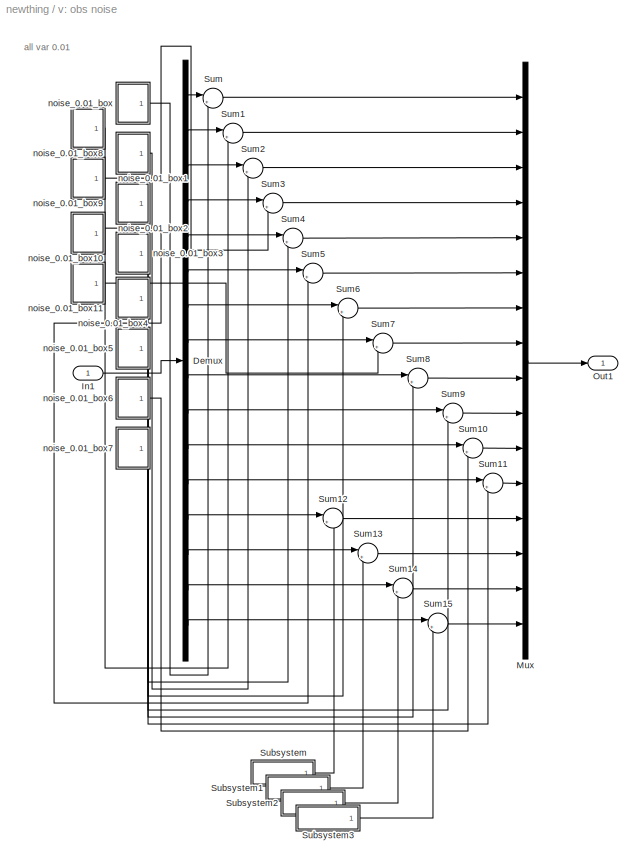
BLOCK [SubSystem] v: obs noise
  Ports = [1, 1]
  RequestExecContextInheritance = off
  SID = 364
BLOCK [Demux] v: obs noise/Demux
  DisplayOption = bar
  Outputs = 16
  Ports = [1, 16]
  SID = 368
BLOCK [Inport] v: obs noise/In1
  IconDisplay = Port number
  SID = 365
BLOCK [Mux] v: obs noise/Mux
  DisplayOption = bar
  Inputs = 16
  Ports = [16, 1]
  SID = 367
BLOCK [Outport] v: obs noise/Out1
  IconDisplay = Port number
  SID = 366
BLOCK [SubSystem] v: obs noise/Subsystem
  Ports = [0, 1]
  RequestExecContextInheritance = off
  SID = 505
BLOCK [Constant] v: obs noise/Subsystem/Constant1
  SID = 411
  Value = 0.0001
BLOCK [Product] v: obs noise/Subsystem/Multiply1
  InputSameDT = off
  OutDataTypeStr = Inherit: Inherit via internal rule
  Ports = [2, 1]
  RndMeth = Floor
  SID = 412
  SaturateOnIntegerOverflow = off
BLOCK [Outport] v: obs noise/Subsystem/Out1
  IconDisplay = Port number
  SID = 506
BLOCK [RandomNumber] v: obs noise/Subsystem/Random\nNumber1
  SID = 413
  SampleTime = dt
  Variance = 0.0001
BLOCK [SubSystem] v: obs noise/Subsystem1
  Ports = [0, 1]
  RequestExecContextInheritance = off
  SID = 507
BLOCK [Constant] v: obs noise/Subsystem1/Constant1
  SID = 508
  Value = 0.0001
BLOCK [Product] v: obs noise/Subsystem1/Multiply1
  InputSameDT = off
  OutDataTypeStr = Inherit: Inherit via internal rule
  Ports = [2, 1]
  RndMeth = Floor
  SID = 509
  SaturateOnIntegerOverflow = off
BLOCK [Outport] v: obs noise/Subsystem1/Out1
  IconDisplay = Port number
  SID = 511
BLOCK [RandomNumber] v: obs noise/Subsystem1/Random\nNumber1
  SID = 510
  SampleTime = dt
  Variance = 0.0001
BLOCK [SubSystem] v: obs noise/Subsystem2
  Ports = [0, 1]
  RequestExecContextInheritance = off
  SID = 512
BLOCK [Constant] v: obs noise/Subsystem2/Constant1
  SID = 513
  Value = 0.0001
BLOCK [Product] v: obs noise/Subsystem2/Multiply1
  InputSameDT = off
  OutDataTypeStr = Inherit: Inherit via internal rule
  Ports = [2, 1]
  RndMeth = Floor
  SID = 514
  SaturateOnIntegerOverflow = off
BLOCK [Outport] v: obs noise/Subsystem2/Out1
  IconDisplay = Port number
  SID = 516
BLOCK [RandomNumber] v: obs noise/Subsystem2/Random\nNumber1
  SID = 515
  SampleTime = dt
  Variance = 0.0001
BLOCK [SubSystem] v: obs noise/Subsystem3
  Ports = [0, 1]
  RequestExecContextInheritance = off
  SID = 517
BLOCK [Constant] v: obs noise/Subsystem3/Constant1
  SID = 518
  Value = 0.0001
BLOCK [Product] v: obs noise/Subsystem3/Multiply1
  InputSameDT = off
  OutDataTypeStr = Inherit: Inherit via internal rule
  Ports = [2, 1]
  RndMeth = Floor
  SID = 519
  SaturateOnIntegerOverflow = off
BLOCK [Outport] v: obs noise/Subsystem3/Out1
  IconDisplay = Port number
  SID = 521
BLOCK [RandomNumber] v: obs noise/Subsystem3/Random\nNumber1
  SID = 520
  SampleTime = dt
  Variance = 0.0001
BLOCK [Sum] v: obs noise/Sum
  IconShape = round
  InputSameDT = off
  Inputs = |++
  OutDataTypeStr = Inherit: Inherit via internal rule
  Ports = [2, 1]
  SID = 369
  SaturateOnIntegerOverflow = off
BLOCK [Sum] v: obs noise/Sum1
  IconShape = round
  InputSameDT = off
  Inputs = |++
  OutDataTypeStr = Inherit: Inherit via internal rule
  Ports = [2, 1]
  SID = 370
  SaturateOnIntegerOverflow = off
BLOCK [Sum] v: obs noise/Sum10
  IconShape = round
  InputSameDT = off
  Inputs = |++
  OutDataTypeStr = Inherit: Inherit via internal rule
  Ports = [2, 1]
  SID = 381
  SaturateOnIntegerOverflow = off
BLOCK [Sum] v: obs noise/Sum11
  IconShape = round
  InputSameDT = off
  Inputs = |++
  OutDataTypeStr = Inherit: Inherit via internal rule
  Ports = [2, 1]
  SID = 382
  SaturateOnIntegerOverflow = off
BLOCK [Sum] v: obs noise/Sum12
  IconShape = round
  InputSameDT = off
  Inputs = |++
  OutDataTypeStr = Inherit: Inherit via internal rule
  Ports = [2, 1]
  SID = 414
  SaturateOnIntegerOverflow = off
BLOCK [Sum] v: obs noise/Sum13
  IconShape = round
  InputSameDT = off
  Inputs = |++
  OutDataTypeStr = Inherit: Inherit via internal rule
  Ports = [2, 1]
  SID = 415
  SaturateOnIntegerOverflow = off
BLOCK [Sum] v: obs noise/Sum14
  IconShape = round
  InputSameDT = off
  Inputs = |++
  OutDataTypeStr = Inherit: Inherit via internal rule
  Ports = [2, 1]
  SID = 416
  SaturateOnIntegerOverflow = off
BLOCK [Sum] v: obs noise/Sum15
  IconShape = round
  InputSameDT = off
  Inputs = |++
  OutDataTypeStr = Inherit: Inherit via internal rule
  Ports = [2, 1]
  SID = 417
  SaturateOnIntegerOverflow = off
BLOCK [Sum] v: obs noise/Sum2
  IconShape = round
  InputSameDT = off
  Inputs = |++
  OutDataTypeStr = Inherit: Inherit via internal rule
  Ports = [2, 1]
  SID = 371
  SaturateOnIntegerOverflow = off
BLOCK [Sum] v: obs noise/Sum3
  IconShape = round
  InputSameDT = off
  Inputs = |++
  OutDataTypeStr = Inherit: Inherit via internal rule
  Ports = [2, 1]
  SID = 372
  SaturateOnIntegerOverflow = off
BLOCK [Sum] v: obs noise/Sum4
  IconShape = round
  InputSameDT = off
  Inputs = |++
  OutDataTypeStr = Inherit: Inherit via internal rule
  Ports = [2, 1]
  SID = 373
  SaturateOnIntegerOverflow = off
BLOCK [Sum] v: obs noise/Sum5
  IconShape = round
  InputSameDT = off
  Inputs = |++
  OutDataTypeStr = Inherit: Inherit via internal rule
  Ports = [2, 1]
  SID = 375
  SaturateOnIntegerOverflow = off
BLOCK [Sum] v: obs noise/Sum6
  IconShape = round
  InputSameDT = off
  Inputs = |++
  OutDataTypeStr = Inherit: Inherit via internal rule
  Ports = [2, 1]
  SID = 376
  SaturateOnIntegerOverflow = off
BLOCK [Sum] v: obs noise/Sum7
  IconShape = round
  InputSameDT = off
  Inputs = |++
  OutDataTypeStr = Inherit: Inherit via internal rule
  Ports = [2, 1]
  SID = 377
  SaturateOnIntegerOverflow = off
BLOCK [Sum] v: obs noise/Sum8
  IconShape = round
  InputSameDT = off
  Inputs = |++
  OutDataTypeStr = Inherit: Inherit via internal rule
  Ports = [2, 1]
  SID = 379
  SaturateOnIntegerOverflow = off
BLOCK [Sum] v: obs noise/Sum9
  IconShape = round
  InputSameDT = off
  Inputs = |++
  OutDataTypeStr = Inherit: Inherit via internal rule
  Ports = [2, 1]
  SID = 380
  SaturateOnIntegerOverflow = off
BLOCK [SubSystem] v: obs noise/noise_0.01_box
  Ports = [0, 1]
  RequestExecContextInheritance = off
  SID = 429
BLOCK [Constant] v: obs noise/noise_0.01_box/Constant2
  SID = 430
  Value = 0.01
BLOCK [Product] v: obs noise/noise_0.01_box/Multiply
  InputSameDT = off
  OutDataTypeStr = Inherit: Inherit via internal rule
  Ports = [2, 1]
  RndMeth = Floor
  SID = 431
  SaturateOnIntegerOverflow = off
BLOCK [Outport] v: obs noise/noise_0.01_box/Out1
  IconDisplay = Port number
  SID = 433
BLOCK [RandomNumber] v: obs noise/noise_0.01_box/Random\nNumber
  SID = 432
  SampleTime = dt
  Variance = 0.01
BLOCK [SubSystem] v: obs noise/noise_0.01_box1
  Ports = [0, 1]
  RequestExecContextInheritance = off
  SID = 449
BLOCK [Constant] v: obs noise/noise_0.01_box1/Constant2
  SID = 450
  Value = 0.01
BLOCK [Product] v: obs noise/noise_0.01_box1/Multiply
  InputSameDT = off
  OutDataTypeStr = Inherit: Inherit via internal rule
  Ports = [2, 1]
  RndMeth = Floor
  SID = 451
  SaturateOnIntegerOverflow = off
BLOCK [Outport] v: obs noise/noise_0.01_box1/Out1
  IconDisplay = Port number
  SID = 453
BLOCK [RandomNumber] v: obs noise/noise_0.01_box1/Random\nNumber
  SID = 452
  SampleTime = dt
  Variance = 0.01
BLOCK [SubSystem] v: obs noise/noise_0.01_box10
  Ports = [0, 1]
  RequestExecContextInheritance = off
  SID = 494
BLOCK [Constant] v: obs noise/noise_0.01_box10/Constant2
  SID = 495
  Value = 0.01
BLOCK [Product] v: obs noise/noise_0.01_box10/Multiply
  InputSameDT = off
  OutDataTypeStr = Inherit: Inherit via internal rule
  Ports = [2, 1]
  RndMeth = Floor
  SID = 496
  SaturateOnIntegerOverflow = off
BLOCK [Outport] v: obs noise/noise_0.01_box10/Out1
  IconDisplay = Port number
  SID = 498
BLOCK [RandomNumber] v: obs noise/noise_0.01_box10/Random\nNumber
  SID = 497
  SampleTime = dt
  Variance = 0.01
BLOCK [SubSystem] v: obs noise/noise_0.01_box11
  Ports = [0, 1]
  RequestExecContextInheritance = off
  SID = 499
BLOCK [Constant] v: obs noise/noise_0.01_box11/Constant2
  SID = 500
  Value = 0.01
BLOCK [Product] v: obs noise/noise_0.01_box11/Multiply
  InputSameDT = off
  OutDataTypeStr = Inherit: Inherit via internal rule
  Ports = [2, 1]
  RndMeth = Floor
  SID = 501
  SaturateOnIntegerOverflow = off
BLOCK [Outport] v: obs noise/noise_0.01_box11/Out1
  IconDisplay = Port number
  SID = 503
BLOCK [RandomNumber] v: obs noise/noise_0.01_box11/Random\nNumber
  SID = 502
  SampleTime = dt
  Variance = 0.01
BLOCK [SubSystem] v: obs noise/noise_0.01_box2
  Ports = [0, 1]
  RequestExecContextInheritance = off
  SID = 454
BLOCK [Constant] v: obs noise/noise_0.01_box2/Constant2
  SID = 455
  Value = 0.01
BLOCK [Product] v: obs noise/noise_0.01_box2/Multiply
  InputSameDT = off
  OutDataTypeStr = Inherit: Inherit via internal rule
  Ports = [2, 1]
  RndMeth = Floor
  SID = 456
  SaturateOnIntegerOverflow = off
BLOCK [Outport] v: obs noise/noise_0.01_box2/Out1
  IconDisplay = Port number
  SID = 458
BLOCK [RandomNumber] v: obs noise/noise_0.01_box2/Random\nNumber
  SID = 457
  SampleTime = dt
  Variance = 0.01
BLOCK [SubSystem] v: obs noise/noise_0.01_box3
  Ports = [0, 1]
  RequestExecContextInheritance = off
  SID = 459
BLOCK [Constant] v: obs noise/noise_0.01_box3/Constant2
  SID = 460
  Value = 0.01
BLOCK [Product] v: obs noise/noise_0.01_box3/Multiply
  InputSameDT = off
  OutDataTypeStr = Inherit: Inherit via internal rule
  Ports = [2, 1]
  RndMeth = Floor
  SID = 461
  SaturateOnIntegerOverflow = off
BLOCK [Outport] v: obs noise/noise_0.01_box3/Out1
  IconDisplay = Port number
  SID = 463
BLOCK [RandomNumber] v: obs noise/noise_0.01_box3/Random\nNumber
  SID = 462
  SampleTime = dt
  Variance = 0.01
BLOCK [SubSystem] v: obs noise/noise_0.01_box4
  Ports = [0, 1]
  RequestExecContextInheritance = off
  SID = 464
BLOCK [Constant] v: obs noise/noise_0.01_box4/Constant2
  SID = 465
  Value = 0.01
BLOCK [Product] v: obs noise/noise_0.01_box4/Multiply
  InputSameDT = off
  OutDataTypeStr = Inherit: Inherit via internal rule
  Ports = [2, 1]
  RndMeth = Floor
  SID = 466
  SaturateOnIntegerOverflow = off
BLOCK [Outport] v: obs noise/noise_0.01_box4/Out1
  IconDisplay = Port number
  SID = 468
BLOCK [RandomNumber] v: obs noise/noise_0.01_box4/Random\nNumber
  SID = 467
  SampleTime = dt
  Variance = 0.01
BLOCK [SubSystem] v: obs noise/noise_0.01_box5
  Ports = [0, 1]
  RequestExecContextInheritance = off
  SID = 469
BLOCK [Constant] v: obs noise/noise_0.01_box5/Constant2
  SID = 470
  Value = 0.01
BLOCK [Product] v: obs noise/noise_0.01_box5/Multiply
  InputSameDT = off
  OutDataTypeStr = Inherit: Inherit via internal rule
  Ports = [2, 1]
  RndMeth = Floor
  SID = 471
  SaturateOnIntegerOverflow = off
BLOCK [Outport] v: obs noise/noise_0.01_box5/Out1
  IconDisplay = Port number
  SID = 473
BLOCK [RandomNumber] v: obs noise/noise_0.01_box5/Random\nNumber
  SID = 472
  SampleTime = dt
  Variance = 0.01
BLOCK [SubSystem] v: obs noise/noise_0.01_box6
  Ports = [0, 1]
  RequestExecContextInheritance = off
  SID = 474
BLOCK [Constant] v: obs noise/noise_0.01_box6/Constant2
  SID = 475
  Value = 0.01
BLOCK [Product] v: obs noise/noise_0.01_box6/Multiply
  InputSameDT = off
  OutDataTypeStr = Inherit: Inherit via internal rule
  Ports = [2, 1]
  RndMeth = Floor
  SID = 476
  SaturateOnIntegerOverflow = off
BLOCK [Outport] v: obs noise/noise_0.01_box6/Out1
  IconDisplay = Port number
  SID = 478
BLOCK [RandomNumber] v: obs noise/noise_0.01_box6/Random\nNumber
  SID = 477
  SampleTime = dt
  Variance = 0.01
BLOCK [SubSystem] v: obs noise/noise_0.01_box7
  Ports = [0, 1]
  RequestExecContextInheritance = off
  SID = 479
BLOCK [Constant] v: obs noise/noise_0.01_box7/Constant2
  SID = 480
  Value = 0.01
BLOCK [Product] v: obs noise/noise_0.01_box7/Multiply
  InputSameDT = off
  OutDataTypeStr = Inherit: Inherit via internal rule
  Ports = [2, 1]
  RndMeth = Floor
  SID = 481
  SaturateOnIntegerOverflow = off
BLOCK [Outport] v: obs noise/noise_0.01_box7/Out1
  IconDisplay = Port number
  SID = 483
BLOCK [RandomNumber] v: obs noise/noise_0.01_box7/Random\nNumber
  SID = 482
  SampleTime = dt
  Variance = 0.01
BLOCK [SubSystem] v: obs noise/noise_0.01_box8
  Ports = [0, 1]
  RequestExecContextInheritance = off
  SID = 484
BLOCK [Constant] v: obs noise/noise_0.01_box8/Constant2
  SID = 485
  Value = 0.01
BLOCK [Product] v: obs noise/noise_0.01_box8/Multiply
  InputSameDT = off
  OutDataTypeStr = Inherit: Inherit via internal rule
  Ports = [2, 1]
  RndMeth = Floor
  SID = 486
  SaturateOnIntegerOverflow = off
BLOCK [Outport] v: obs noise/noise_0.01_box8/Out1
  IconDisplay = Port number
  SID = 488
BLOCK [RandomNumber] v: obs noise/noise_0.01_box8/Random\nNumber
  SID = 487
  SampleTime = dt
  Variance = 0.01
BLOCK [SubSystem] v: obs noise/noise_0.01_box9
  Ports = [0, 1]
  RequestExecContextInheritance = off
  SID = 489
BLOCK [Constant] v: obs noise/noise_0.01_box9/Constant2
  SID = 490
  Value = 0.01
BLOCK [Product] v: obs noise/noise_0.01_box9/Multiply
  InputSameDT = off
  OutDataTypeStr = Inherit: Inherit via internal rule
  Ports = [2, 1]
  RndMeth = Floor
  SID = 491
  SaturateOnIntegerOverflow = off
BLOCK [Outport] v: obs noise/noise_0.01_box9/Out1
  IconDisplay = Port number
  SID = 493
BLOCK [RandomNumber] v: obs noise/noise_0.01_box9/Random\nNumber
  SID = 492
  SampleTime = dt
  Variance = 0.01
BLOCK [SubSystem] w: Process noise
  Ports = [1, 1]
  RequestExecContextInheritance = off
  SID = 355
BLOCK [Demux] w: Process noise/Demux
  DisplayOption = bar
  Ports = [1, 4]
  SID = 524
BLOCK [Inport] w: Process noise/Input
  IconDisplay = Port number
  SID = 522
BLOCK [Mux] w: Process noise/Mux
  DisplayOption = bar
  Ports = [4, 1]
  SID = 523
BLOCK [Outport] w: Process noise/Out1
  IconDisplay = Port number
  SID = 359
BLOCK [SubSystem] w: Process noise/Subsystem
  Ports = [0, 1]
  RequestExecContextInheritance = off
  SID = 525
BLOCK [Constant] w: Process noise/Subsystem/Constant2
  SID = 356
  Value = 0.05
BLOCK [Product] w: Process noise/Subsystem/Multiply
  InputSameDT = off
  OutDataTypeStr = Inherit: Inherit via internal rule
  Ports = [2, 1]
  RndMeth = Floor
  SID = 357
  SaturateOnIntegerOverflow = off
BLOCK [Outport] w: Process noise/Subsystem/Out1
  IconDisplay = Port number
  SID = 526
BLOCK [RandomNumber] w: Process noise/Subsystem/Random\nNumber
  SID = 358
  SampleTime = dt
  Variance = 0.05
BLOCK [SubSystem] w: Process noise/Subsystem1
  Ports = [0, 1]
  RequestExecContextInheritance = off
  SID = 531
BLOCK [Constant] w: Process noise/Subsystem1/Constant2
  SID = 532
  Value = 0.05
BLOCK [Product] w: Process noise/Subsystem1/Multiply
  InputSameDT = off
  OutDataTypeStr = Inherit: Inherit via internal rule
  Ports = [2, 1]
  RndMeth = Floor
  SID = 533
  SaturateOnIntegerOverflow = off
BLOCK [Outport] w: Process noise/Subsystem1/Out1
  IconDisplay = Port number
  SID = 535
BLOCK [RandomNumber] w: Process noise/Subsystem1/Random\nNumber
  SID = 534
  SampleTime = dt
  Variance = 0.05
BLOCK [SubSystem] w: Process noise/Subsystem2
  Ports = [0, 1]
  RequestExecContextInheritance = off
  SID = 536
BLOCK [Constant] w: Process noise/Subsystem2/Constant2
  SID = 537
  Value = 0.05
BLOCK [Product] w: Process noise/Subsystem2/Multiply
  InputSameDT = off
  OutDataTypeStr = Inherit: Inherit via internal rule
  Ports = [2, 1]
  RndMeth = Floor
  SID = 538
  SaturateOnIntegerOverflow = off
BLOCK [Outport] w: Process noise/Subsystem2/Out1
  IconDisplay = Port number
  SID = 540
BLOCK [RandomNumber] w: Process noise/Subsystem2/Random\nNumber
  SID = 539
  SampleTime = dt
  Variance = 0.05
BLOCK [SubSystem] w: Process noise/Subsystem3
  Ports = [0, 1]
  RequestExecContextInheritance = off
  SID = 541
BLOCK [Constant] w: Process noise/Subsystem3/Constant2
  SID = 542
  Value = 0.05
BLOCK [Product] w: Process noise/Subsystem3/Multiply
  InputSameDT = off
  OutDataTypeStr = Inherit: Inherit via internal rule
  Ports = [2, 1]
  RndMeth = Floor
  SID = 543
  SaturateOnIntegerOverflow = off
BLOCK [Outport] w: Process noise/Subsystem3/Out1
  IconDisplay = Port number
  SID = 545
BLOCK [RandomNumber] w: Process noise/Subsystem3/Random\nNumber
  SID = 544
  SampleTime = dt
  Variance = 0.05
BLOCK [Sum] w: Process noise/Sum
  IconShape = round
  InputSameDT = off
  Inputs = |++
  OutDataTypeStr = Inherit: Inherit via internal rule
  Ports = [2, 1]
  SID = 527
  SaturateOnIntegerOverflow = off
BLOCK [Sum] w: Process noise/Sum1
  IconShape = round
  InputSameDT = off
  Inputs = |++
  OutDataTypeStr = Inherit: Inherit via internal rule
  Ports = [2, 1]
  SID = 528
  SaturateOnIntegerOverflow = off
BLOCK [Sum] w: Process noise/Sum2
  IconShape = round
  InputSameDT = off
  Inputs = |++
  OutDataTypeStr = Inherit: Inherit via internal rule
  Ports = [2, 1]
  SID = 529
  SaturateOnIntegerOverflow = off
BLOCK [Sum] w: Process noise/Sum3
  IconShape = round
  InputSameDT = off
  Inputs = |++
  OutDataTypeStr = Inherit: Inherit via internal rule
  Ports = [2, 1]
  SID = 530
  SaturateOnIntegerOverflow = off
ANNOTATION quadmodel/Body dynamics: 7/24-31/09 Paul Schanwald: Nonlinear Model of Quadrotor Helicopter; 7/25/09 Ivana Palunko: Version 2 of the model\nDerived from: S. Bouabdallah, et al., \"Dynamic Modeling of UAVs\", Ecole Polytechnique Federale de Lausanne, 5/2006
ANNOTATION quadmodel/Body dynamics: Inertia & Body Frames = North-West-Up
ANNOTATION quadmodel/Body dynamics: Phi = Roll; Theta = Pitch; Psi = Yaw\nL = Moment Arm, CG to Rotor\nIxx = x-axis Body Inertia\nIyy = y-axis Body Inertia\nIzz = z-axis Body Inertia\nga = gravitation acceleration\nm = total mass of Quadrotor\nJr = Rotor Inertia\na,b = Volts-to-Rotor Speed Consts\nc,d,e = RtrSpd-to-Thrust Fcn Consts\nf,g,h = RtrSpd-to-Drag Fcn Consts\nTau = Motor Time Const
ANNOTATION quadmodel/Body dynamics: Rotation\nDynamics:
ANNOTATION quadmodel/Body dynamics: Translation\nDynamics:
ANNOTATION quadmodel/Body dynamics/Pitch Stability: d2Theta
ANNOTATION quadmodel/Body dynamics/Pitch Stability: dTheta
ANNOTATION quadmodel/Body dynamics/Roll Stability: d2Phi
ANNOTATION quadmodel/Body dynamics/Roll Stability: dPhi
ANNOTATION quadmodel/Body dynamics/Yaw Stability: d2Psi
ANNOTATION quadmodel/Body dynamics/Yaw Stability: dPsi
ANNOTATION quadmodel/Motor dynamics: Motor/Rotor\nDynamics:
ANNOTATION quadmodel/Motor dynamics: Phi Precession\nMoment RotorSpd
ANNOTATION quadmodel/Motor dynamics: Theta Precession\nMoment RotorSpd
ANNOTATION quadmodel/Motor dynamics: U1
ANNOTATION quadmodel/Motor dynamics: U2
ANNOTATION quadmodel/Motor dynamics: U3
ANNOTATION quadmodel/Motor dynamics: U4
ANNOTATION quadmodel/Motor dynamics/Motor//Rotor1: Omega1\n(r/s)
ANNOTATION quadmodel/Motor dynamics/Motor//Rotor2: Omega1\n(r/s)
ANNOTATION quadmodel/Motor dynamics/Motor//Rotor3: Omega1\n(r/s)
ANNOTATION quadmodel/Motor dynamics/Motor//Rotor4: Omega1\n(r/s)
ANNOTATION v: obs noise: all var 0.01
LINE Constant1:1 -> Sum1:3
LINE Constant:1 -> Zero-Order\nHold2:1
LINE Demux:1 -> quadmodel:1
LINE Demux:2 -> quadmodel:2
LINE Demux:3 -> quadmodel:3
LINE Demux:4 -> quadmodel:4
LINE ExtendedKalmanFilter/Constant10:1 -> ExtendedKalmanFilter/Kalman Filter:21
LINE ExtendedKalmanFilter/Constant11:1 -> ExtendedKalmanFilter/Kalman Filter:20
LINE ExtendedKalmanFilter/Constant12:1 -> ExtendedKalmanFilter/Kalman Filter:22
LINE ExtendedKalmanFilter/Constant13:1 -> ExtendedKalmanFilter/Kalman Filter:23
LINE ExtendedKalmanFilter/Constant14:1 -> ExtendedKalmanFilter/Kalman Filter:24
LINE ExtendedKalmanFilter/Constant1:1 -> ExtendedKalmanFilter/Kalman Filter:11
LINE ExtendedKalmanFilter/Constant2:1 -> ExtendedKalmanFilter/Kalman Filter:12
LINE ExtendedKalmanFilter/Constant3:1 -> ExtendedKalmanFilter/Kalman Filter:13
LINE ExtendedKalmanFilter/Constant4:1 -> ExtendedKalmanFilter/Kalman Filter:14
LINE ExtendedKalmanFilter/Constant5:1 -> ExtendedKalmanFilter/Kalman Filter:15
LINE ExtendedKalmanFilter/Constant6:1 -> ExtendedKalmanFilter/Kalman Filter:16
LINE ExtendedKalmanFilter/Constant7:1 -> ExtendedKalmanFilter/Kalman Filter:17
LINE ExtendedKalmanFilter/Constant8:1 -> ExtendedKalmanFilter/Kalman Filter:18
LINE ExtendedKalmanFilter/Constant9:1 -> ExtendedKalmanFilter/Kalman Filter:19
LINE ExtendedKalmanFilter/Constant:1 -> ExtendedKalmanFilter/Kalman Filter:10
LINE ExtendedKalmanFilter/Demux:1 -> ExtendedKalmanFilter/Kalman Filter:5
LINE ExtendedKalmanFilter/Demux:2 -> ExtendedKalmanFilter/Kalman Filter:6
LINE ExtendedKalmanFilter/Demux:3 -> ExtendedKalmanFilter/Kalman Filter:7
LINE ExtendedKalmanFilter/Demux:4 -> ExtendedKalmanFilter/Kalman Filter:8
LINE ExtendedKalmanFilter/Demux:5 -> ExtendedKalmanFilter/Kalman Filter:9
LINE ExtendedKalmanFilter/Kalman Filter/ Demux :1 -> ExtendedKalmanFilter/Kalman Filter/ Terminator :1
LINE ExtendedKalmanFilter/Kalman Filter/ SFunction :1 -> ExtendedKalmanFilter/Kalman Filter/ Demux :1
LINE ExtendedKalmanFilter/Kalman Filter/ SFunction :2 -> ExtendedKalmanFilter/Kalman Filter/x_t1_t1:1
LINE ExtendedKalmanFilter/Kalman Filter/ SFunction :3 -> ExtendedKalmanFilter/Kalman Filter/S_t1_t1:1
LINE ExtendedKalmanFilter/Kalman Filter/ SFunction :4 -> ExtendedKalmanFilter/Kalman Filter/K:1
LINE ExtendedKalmanFilter/Kalman Filter/A:1 -> ExtendedKalmanFilter/Kalman Filter/ SFunction :10
LINE ExtendedKalmanFilter/Kalman Filter/B:1 -> ExtendedKalmanFilter/Kalman Filter/ SFunction :11
LINE ExtendedKalmanFilter/Kalman Filter/C:1 -> ExtendedKalmanFilter/Kalman Filter/ SFunction :12
LINE ExtendedKalmanFilter/Kalman Filter/G:1 -> ExtendedKalmanFilter/Kalman Filter/ SFunction :13
LINE ExtendedKalmanFilter/Kalman Filter/H:1 -> ExtendedKalmanFilter/Kalman Filter/ SFunction :14
LINE ExtendedKalmanFilter/Kalman Filter/Ixx:1 -> ExtendedKalmanFilter/Kalman Filter/ SFunction :20
LINE ExtendedKalmanFilter/Kalman Filter/Iyy:1 -> ExtendedKalmanFilter/Kalman Filter/ SFunction :21
LINE ExtendedKalmanFilter/Kalman Filter/Izz:1 -> ExtendedKalmanFilter/Kalman Filter/ SFunction :22
LINE ExtendedKalmanFilter/Kalman Filter/Jr:1 -> ExtendedKalmanFilter/Kalman Filter/ SFunction :23
LINE ExtendedKalmanFilter/Kalman Filter/L:1 -> ExtendedKalmanFilter/Kalman Filter/ SFunction :24
LINE ExtendedKalmanFilter/Kalman Filter/Omega:1 -> ExtendedKalmanFilter/Kalman Filter/ SFunction :9
LINE ExtendedKalmanFilter/Kalman Filter/S_t_t:1 -> ExtendedKalmanFilter/Kalman Filter/ SFunction :2
LINE ExtendedKalmanFilter/Kalman Filter/Sv:1 -> ExtendedKalmanFilter/Kalman Filter/ SFunction :15
LINE ExtendedKalmanFilter/Kalman Filter/Sw:1 -> ExtendedKalmanFilter/Kalman Filter/ SFunction :16
LINE ExtendedKalmanFilter/Kalman Filter/U1:1 -> ExtendedKalmanFilter/Kalman Filter/ SFunction :5
LINE ExtendedKalmanFilter/Kalman Filter/U2:1 -> ExtendedKalmanFilter/Kalman Filter/ SFunction :6
LINE ExtendedKalmanFilter/Kalman Filter/U3:1 -> ExtendedKalmanFilter/Kalman Filter/ SFunction :7
LINE ExtendedKalmanFilter/Kalman Filter/U4:1 -> ExtendedKalmanFilter/Kalman Filter/ SFunction :8
LINE ExtendedKalmanFilter/Kalman Filter/dt:1 -> ExtendedKalmanFilter/Kalman Filter/ SFunction :17
LINE ExtendedKalmanFilter/Kalman Filter/ga:1 -> ExtendedKalmanFilter/Kalman Filter/ SFunction :18
LINE ExtendedKalmanFilter/Kalman Filter/m:1 -> ExtendedKalmanFilter/Kalman Filter/ SFunction :19
LINE ExtendedKalmanFilter/Kalman Filter/u_t:1 -> ExtendedKalmanFilter/Kalman Filter/ SFunction :4
LINE ExtendedKalmanFilter/Kalman Filter/x_t_t:1 -> ExtendedKalmanFilter/Kalman Filter/ SFunction :1
LINE ExtendedKalmanFilter/Kalman Filter/y_t1:1 -> ExtendedKalmanFilter/Kalman Filter/ SFunction :3
NET ExtendedKalmanFilter/Kalman Filter:1 -> ExtendedKalmanFilter/Out1:1, ExtendedKalmanFilter/Unit Delay1:1
LINE ExtendedKalmanFilter/Kalman Filter:2 -> ExtendedKalmanFilter/Unit Delay:1
LINE ExtendedKalmanFilter/Kalman Filter:3 -> ExtendedKalmanFilter/Out2:1
LINE ExtendedKalmanFilter/Unit Delay1:1 -> ExtendedKalmanFilter/Kalman Filter:1
LINE ExtendedKalmanFilter/Unit Delay:1 -> ExtendedKalmanFilter/Kalman Filter:2
LINE ExtendedKalmanFilter/input1:1 -> ExtendedKalmanFilter/Demux:1
LINE ExtendedKalmanFilter/input:1 -> ExtendedKalmanFilter/Kalman Filter:4
LINE ExtendedKalmanFilter/measurement:1 -> ExtendedKalmanFilter/Kalman Filter:3
NET ExtendedKalmanFilter:1 -> Sum:2, To Workspace1:1
LINE ExtendedKalmanFilter:2 -> To Workspace2:1
LINE From\nWorkspace1:1 -> Reshape1:1
LINE From\nWorkspace:1 -> Reshape:1
LINE Gain:1 -> Sum1:2
LINE Matrix Multiply:1 -> Sum1:1
NET Mux:1 -> To Workspace3:1, v: obs noise:1
LINE Reshape1:1 -> Zero-Order\nHold1:1
LINE Reshape:1 -> Zero-Order\nHold:1
NET Sum1:1 -> ExtendedKalmanFilter:2, w: Process noise:1
LINE Sum3:1 -> Sum:1
NET Sum:1 -> Gain:1, Matrix Multiply:2
LINE Zero-Order\nHold1:1 -> Sum3:2
LINE Zero-Order\nHold2:1 -> Sum3:1
LINE Zero-Order\nHold:1 -> Matrix Multiply:1
NET quadmodel/Body dynamics/Omega:1 -> quadmodel/Body dynamics/Pitch Stability:2, quadmodel/Body dynamics/Roll Stability:1
LINE quadmodel/Body dynamics/Pitch Stability/Gain1:1 -> quadmodel/Body dynamics/Pitch Stability/Sum8:2
LINE quadmodel/Body dynamics/Pitch Stability/Gain2:1 -> quadmodel/Body dynamics/Pitch Stability/Sum8:4
LINE quadmodel/Body dynamics/Pitch Stability/Gain3:1 -> quadmodel/Body dynamics/Pitch Stability/Sum8:3
LINE quadmodel/Body dynamics/Pitch Stability/Gain7:1 -> quadmodel/Body dynamics/Pitch Stability/Prod2:2
LINE quadmodel/Body dynamics/Pitch Stability/Prod2:1 -> quadmodel/Body dynamics/Pitch Stability/Sum8:1
LINE quadmodel/Body dynamics/Pitch Stability/Prod:1 -> quadmodel/Body dynamics/Pitch Stability/Gain3:1
LINE quadmodel/Body dynamics/Pitch Stability/Sum8:1 -> quadmodel/Body dynamics/Pitch Stability/int_dtheta:1
LINE quadmodel/Body dynamics/Pitch Stability/SumYRtrSpd:1 -> quadmodel/Body dynamics/Pitch Stability/Prod2:1
LINE quadmodel/Body dynamics/Pitch Stability/U3:1 -> quadmodel/Body dynamics/Pitch Stability/Gain1:1
NET quadmodel/Body dynamics/Pitch Stability/dPhi:1 -> quadmodel/Body dynamics/Pitch Stability/Gain7:1, quadmodel/Body dynamics/Pitch Stability/Prod:1
LINE quadmodel/Body dynamics/Pitch Stability/dPsi:1 -> quadmodel/Body dynamics/Pitch Stability/Prod:2
NET quadmodel/Body dynamics/Pitch Stability/int_dtheta:1 -> quadmodel/Body dynamics/Pitch Stability/Gain2:1, quadmodel/Body dynamics/Pitch Stability/dTheta:1, quadmodel/Body dynamics/Pitch Stability/int_theta:1
LINE quadmodel/Body dynamics/Pitch Stability/int_theta:1 -> quadmodel/Body dynamics/Pitch Stability/Theta:1
NET quadmodel/Body dynamics/Pitch Stability:1 -> quadmodel/Body dynamics/Theta:1, quadmodel/Body dynamics/tc\n:3
NET quadmodel/Body dynamics/Pitch Stability:2 -> quadmodel/Body dynamics/Roll Stability:3, quadmodel/Body dynamics/Yaw Stability:3, quadmodel/Body dynamics/dTheta:1
LINE quadmodel/Body dynamics/Roll Stability/Gain1:1 -> quadmodel/Body dynamics/Roll Stability/Sum9:4
LINE quadmodel/Body dynamics/Roll Stability/Gain3:1 -> quadmodel/Body dynamics/Roll Stability/Sum9:3
LINE quadmodel/Body dynamics/Roll Stability/Gain5:1 -> quadmodel/Body dynamics/Roll Stability/Sum9:2
LINE quadmodel/Body dynamics/Roll Stability/Gain8:1 -> quadmodel/Body dynamics/Roll Stability/Prod3:2
LINE quadmodel/Body dynamics/Roll Stability/Prod1:1 -> quadmodel/Body dynamics/Roll Stability/Gain3:1
LINE quadmodel/Body dynamics/Roll Stability/Prod3:1 -> quadmodel/Body dynamics/Roll Stability/Sum9:1
LINE quadmodel/Body dynamics/Roll Stability/Sum9:1 -> quadmodel/Body dynamics/Roll Stability/d2Phi:1
LINE quadmodel/Body dynamics/Roll Stability/SumXRtrSpd:1 -> quadmodel/Body dynamics/Roll Stability/Prod3:1
LINE quadmodel/Body dynamics/Roll Stability/U2:1 -> quadmodel/Body dynamics/Roll Stability/Gain5:1
NET quadmodel/Body dynamics/Roll Stability/d2Phi:1 -> quadmodel/Body dynamics/Roll Stability/Gain1:1, quadmodel/Body dynamics/Roll Stability/dPhi1:1, quadmodel/Body dynamics/Roll Stability/dPhi:1
LINE quadmodel/Body dynamics/Roll Stability/dPhi1:1 -> quadmodel/Body dynamics/Roll Stability/Phi:1
LINE quadmodel/Body dynamics/Roll Stability/dPsi:1 -> quadmodel/Body dynamics/Roll Stability/Prod1:2
NET quadmodel/Body dynamics/Roll Stability/dTheta:1 -> quadmodel/Body dynamics/Roll Stability/Gain8:1, quadmodel/Body dynamics/Roll Stability/Prod1:1
NET quadmodel/Body dynamics/Roll Stability:1 -> quadmodel/Body dynamics/Phi:1, quadmodel/Body dynamics/tc\n:2
NET quadmodel/Body dynamics/Roll Stability:2 -> quadmodel/Body dynamics/Pitch Stability:1, quadmodel/Body dynamics/Yaw Stability:2, quadmodel/Body dynamics/dPhi:1
NET quadmodel/Body dynamics/U1:1 -> quadmodel/Body dynamics/Torque:1, quadmodel/Body dynamics/tc\n:1
NET quadmodel/Body dynamics/U2:1 -> quadmodel/Body dynamics/Roll Stability:2, quadmodel/Body dynamics/Torque:2
NET quadmodel/Body dynamics/U3:1 -> quadmodel/Body dynamics/Pitch Stability:3, quadmodel/Body dynamics/Torque:3
NET quadmodel/Body dynamics/U4:1 -> quadmodel/Body dynamics/Torque:4, quadmodel/Body dynamics/Yaw Stability:1
LINE quadmodel/Body dynamics/Yaw Stability/Gain1:1 -> quadmodel/Body dynamics/Yaw Stability/Sum:3
LINE quadmodel/Body dynamics/Yaw Stability/Gain2:1 -> quadmodel/Body dynamics/Yaw Stability/Sum:2
LINE quadmodel/Body dynamics/Yaw Stability/Gain:1 -> quadmodel/Body dynamics/Yaw Stability/ind_dpsi:1
LINE quadmodel/Body dynamics/Yaw Stability/Product:1 -> quadmodel/Body dynamics/Yaw Stability/Gain2:1
LINE quadmodel/Body dynamics/Yaw Stability/Sum:1 -> quadmodel/Body dynamics/Yaw Stability/Gain:1
LINE quadmodel/Body dynamics/Yaw Stability/U4:1 -> quadmodel/Body dynamics/Yaw Stability/Sum:1
LINE quadmodel/Body dynamics/Yaw Stability/dPhi:1 -> quadmodel/Body dynamics/Yaw Stability/Product:1
LINE quadmodel/Body dynamics/Yaw Stability/dTheta:1 -> quadmodel/Body dynamics/Yaw Stability/Product:2
NET quadmodel/Body dynamics/Yaw Stability/ind_dpsi:1 -> quadmodel/Body dynamics/Yaw Stability/Gain1:1, quadmodel/Body dynamics/Yaw Stability/dPsi:1, quadmodel/Body dynamics/Yaw Stability/int_psi:1
LINE quadmodel/Body dynamics/Yaw Stability/int_psi:1 -> quadmodel/Body dynamics/Yaw Stability/Psi:1
NET quadmodel/Body dynamics/Yaw Stability:1 -> quadmodel/Body dynamics/Psi:1, quadmodel/Body dynamics/tc\n:4
NET quadmodel/Body dynamics/Yaw Stability:2 -> quadmodel/Body dynamics/Pitch Stability:4, quadmodel/Body dynamics/Roll Stability:4, quadmodel/Body dynamics/dPsi:1
LINE quadmodel/Body dynamics/tc\n/Constant:1 -> quadmodel/Body dynamics/tc\n/Sum3:2
LINE quadmodel/Body dynamics/tc\n/Gain1:1 -> quadmodel/Body dynamics/tc\n/Integrator_dy:1
LINE quadmodel/Body dynamics/tc\n/Gain2:1 -> quadmodel/Body dynamics/tc\n/Integrator_dz:1
LINE quadmodel/Body dynamics/tc\n/Gain3:1 -> quadmodel/Body dynamics/tc\n/integrator_dx:1
LINE quadmodel/Body dynamics/tc\n/Gain4:1 -> quadmodel/Body dynamics/tc\n/Sum2:2
LINE quadmodel/Body dynamics/tc\n/Gain5:1 -> quadmodel/Body dynamics/tc\n/Sum3:3
LINE quadmodel/Body dynamics/tc\n/Gain6:1 -> quadmodel/Body dynamics/tc\n/Sum1:2
NET quadmodel/Body dynamics/tc\n/Integrator_dy:1 -> quadmodel/Body dynamics/tc\n/Gain4:1, quadmodel/Body dynamics/tc\n/Integrator_y:1, quadmodel/Body dynamics/tc\n/v_y:1, quadmodel/Body dynamics/tc\n/vy:1
NET quadmodel/Body dynamics/tc\n/Integrator_dz:1 -> quadmodel/Body dynamics/tc\n/Gain5:1, quadmodel/Body dynamics/tc\n/Integrator_z:1, quadmodel/Body dynamics/tc\n/v_z:1, quadmodel/Body dynamics/tc\n/vz:1
NET quadmodel/Body dynamics/tc\n/Integrator_x:1 -> quadmodel/Body dynamics/tc\n/X:1, quadmodel/Body dynamics/tc\n/x:1
NET quadmodel/Body dynamics/tc\n/Integrator_y:1 -> quadmodel/Body dynamics/tc\n/Y:1, quadmodel/Body dynamics/tc\n/y:1
NET quadmodel/Body dynamics/tc\n/Integrator_z:1 -> quadmodel/Body dynamics/tc\n/Z:1, quadmodel/Body dynamics/tc\n/z:1
NET quadmodel/Body dynamics/tc\n/Product1:1 -> quadmodel/Body dynamics/tc\n/Fzy_R:1, quadmodel/Body dynamics/tc\n/Sum2:1
NET quadmodel/Body dynamics/tc\n/Product2:1 -> quadmodel/Body dynamics/tc\n/Fzz_R:1, quadmodel/Body dynamics/tc\n/Sum3:1
LINE quadmodel/Body dynamics/tc\n/Product3:1 -> quadmodel/Body dynamics/tc\n/Sum5:1
LINE quadmodel/Body dynamics/tc\n/Product4:1 -> quadmodel/Body dynamics/tc\n/Sum5:2
LINE quadmodel/Body dynamics/tc\n/Product5:1 -> quadmodel/Body dynamics/tc\n/Sum4:1
LINE quadmodel/Body dynamics/tc\n/Product6:1 -> quadmodel/Body dynamics/tc\n/Sum4:2
NET quadmodel/Body dynamics/tc\n/Product:1 -> quadmodel/Body dynamics/tc\n/Fzx_R:1, quadmodel/Body dynamics/tc\n/Sum1:1
LINE quadmodel/Body dynamics/tc\n/Sum1:1 -> quadmodel/Body dynamics/tc\n/Gain3:1
LINE quadmodel/Body dynamics/tc\n/Sum2:1 -> quadmodel/Body dynamics/tc\n/Gain1:1
LINE quadmodel/Body dynamics/tc\n/Sum3:1 -> quadmodel/Body dynamics/tc\n/Gain2:1
LINE quadmodel/Body dynamics/tc\n/Sum4:1 -> quadmodel/Body dynamics/tc\n/Product1:2
LINE quadmodel/Body dynamics/tc\n/Sum5:1 -> quadmodel/Body dynamics/tc\n/Product:2
NET quadmodel/Body dynamics/tc\n/Trigonometric\nFunction1:1 -> quadmodel/Body dynamics/tc\n/Product2:3, quadmodel/Body dynamics/tc\n/Product3:1, quadmodel/Body dynamics/tc\n/Product5:1
NET quadmodel/Body dynamics/tc\n/Trigonometric\nFunction2:1 -> quadmodel/Body dynamics/tc\n/Product3:2, quadmodel/Body dynamics/tc\n/Product5:2
LINE quadmodel/Body dynamics/tc\n/Trigonometric\nFunction3:1 -> quadmodel/Body dynamics/tc\n/Product2:2
NET quadmodel/Body dynamics/tc\n/Trigonometric\nFunction4:1 -> quadmodel/Body dynamics/tc\n/Product4:2, quadmodel/Body dynamics/tc\n/Product5:3
NET quadmodel/Body dynamics/tc\n/Trigonometric\nFunction5:1 -> quadmodel/Body dynamics/tc\n/Product3:3, quadmodel/Body dynamics/tc\n/Product6:2
NET quadmodel/Body dynamics/tc\n/Trigonometric\nFunction:1 -> quadmodel/Body dynamics/tc\n/Product4:1, quadmodel/Body dynamics/tc\n/Product6:1
NET quadmodel/Body dynamics/tc\n/U1:1 -> quadmodel/Body dynamics/tc\n/Product1:1, quadmodel/Body dynamics/tc\n/Product2:1, quadmodel/Body dynamics/tc\n/Product:1
NET quadmodel/Body dynamics/tc\n/fi:1 -> quadmodel/Body dynamics/tc\n/Trigonometric\nFunction1:1, quadmodel/Body dynamics/tc\n/Trigonometric\nFunction:1
NET quadmodel/Body dynamics/tc\n/integrator_dx:1 -> quadmodel/Body dynamics/tc\n/Gain6:1, quadmodel/Body dynamics/tc\n/Integrator_x:1, quadmodel/Body dynamics/tc\n/v_x:1, quadmodel/Body dynamics/tc\n/vx:1
NET quadmodel/Body dynamics/tc\n/psi:1 -> quadmodel/Body dynamics/tc\n/Trigonometric\nFunction4:1, quadmodel/Body dynamics/tc\n/Trigonometric\nFunction5:1
NET quadmodel/Body dynamics/tc\n/theta:1 -> quadmodel/Body dynamics/tc\n/Trigonometric\nFunction2:1, quadmodel/Body dynamics/tc\n/Trigonometric\nFunction3:1
LINE quadmodel/Body dynamics/tc\n:1 -> quadmodel/Body dynamics/X:1
LINE quadmodel/Body dynamics/tc\n:2 -> quadmodel/Body dynamics/Y:1
LINE quadmodel/Body dynamics/tc\n:3 -> quadmodel/Body dynamics/Z:1
LINE quadmodel/Body dynamics/tc\n:4 -> quadmodel/Body dynamics/dx:1
LINE quadmodel/Body dynamics/tc\n:5 -> quadmodel/Body dynamics/dy:1
LINE quadmodel/Body dynamics/tc\n:6 -> quadmodel/Body dynamics/dz:1
LINE quadmodel/Body dynamics:1 -> quadmodel/X:1
LINE quadmodel/Body dynamics:10 -> quadmodel/dTheta:1
LINE quadmodel/Body dynamics:11 -> quadmodel/Psi:1
LINE quadmodel/Body dynamics:12 -> quadmodel/dPsi:1
LINE quadmodel/Body dynamics:2 -> quadmodel/dx:1
LINE quadmodel/Body dynamics:3 -> quadmodel/Y:1
LINE quadmodel/Body dynamics:4 -> quadmodel/dy:1
LINE quadmodel/Body dynamics:5 -> quadmodel/Z:1
LINE quadmodel/Body dynamics:6 -> quadmodel/dz:1
LINE quadmodel/Body dynamics:7 -> quadmodel/Phi:1
LINE quadmodel/Body dynamics:8 -> quadmodel/dPhi:1
LINE quadmodel/Body dynamics:9 -> quadmodel/Theta:1
LINE quadmodel/Motor dynamics/Motor//Rotor1/DragFcn1:1 -> quadmodel/Motor dynamics/Motor//Rotor1/Saturation8:1
LINE quadmodel/Motor dynamics/Motor//Rotor1/Gain:1 -> quadmodel/Motor dynamics/Motor//Rotor1/Integrator:1
NET quadmodel/Motor dynamics/Motor//Rotor1/Integrator:1 -> quadmodel/Motor dynamics/Motor//Rotor1/RtrSpdFcn1:1, quadmodel/Motor dynamics/Motor//Rotor1/Sum:2, quadmodel/Motor dynamics/Motor//Rotor1/int_R1:1
LINE quadmodel/Motor dynamics/Motor//Rotor1/RtrSpdFcn1:1 -> quadmodel/Motor dynamics/Motor//Rotor1/Saturation4:1
LINE quadmodel/Motor dynamics/Motor//Rotor1/Saturation3:1 -> quadmodel/Motor dynamics/Motor//Rotor1/Thrust (N):1
NET quadmodel/Motor dynamics/Motor//Rotor1/Saturation4:1 -> quadmodel/Motor dynamics/Motor//Rotor1/DragFcn1:1, quadmodel/Motor dynamics/Motor//Rotor1/Rotor Speed (r//s):1, quadmodel/Motor dynamics/Motor//Rotor1/ThrustFcn1:1
LINE quadmodel/Motor dynamics/Motor//Rotor1/Saturation8:1 -> quadmodel/Motor dynamics/Motor//Rotor1/Drag (Nm):1
LINE quadmodel/Motor dynamics/Motor//Rotor1/Sum:1 -> quadmodel/Motor dynamics/Motor//Rotor1/Gain:1
LINE quadmodel/Motor dynamics/Motor//Rotor1/ThrustFcn1:1 -> quadmodel/Motor dynamics/Motor//Rotor1/Saturation3:1
LINE quadmodel/Motor dynamics/Motor//Rotor1/Volts In:1 -> quadmodel/Motor dynamics/Motor//Rotor1/Sum:1
LINE quadmodel/Motor dynamics/Motor//Rotor1:1 -> quadmodel/Motor dynamics/Sum10:1
NET quadmodel/Motor dynamics/Motor//Rotor1:2 -> quadmodel/Motor dynamics/Display:1, quadmodel/Motor dynamics/Sum1:1, quadmodel/Motor dynamics/Sum4:1
LINE quadmodel/Motor dynamics/Motor//Rotor1:3 -> quadmodel/Motor dynamics/Sum2:1
LINE quadmodel/Motor dynamics/Motor//Rotor1:4 -> quadmodel/Motor dynamics/R1:1
LINE quadmodel/Motor dynamics/Motor//Rotor2/DragFcn1:1 -> quadmodel/Motor dynamics/Motor//Rotor2/Saturation8:1
LINE quadmodel/Motor dynamics/Motor//Rotor2/Gain:1 -> quadmodel/Motor dynamics/Motor//Rotor2/Integrator:1
NET quadmodel/Motor dynamics/Motor//Rotor2/Integrator:1 -> quadmodel/Motor dynamics/Motor//Rotor2/RtrSpdFcn1:1, quadmodel/Motor dynamics/Motor//Rotor2/Sum:2, quadmodel/Motor dynamics/Motor//Rotor2/int_R2:1
LINE quadmodel/Motor dynamics/Motor//Rotor2/RtrSpdFcn1:1 -> quadmodel/Motor dynamics/Motor//Rotor2/Saturation4:1
LINE quadmodel/Motor dynamics/Motor//Rotor2/Saturation3:1 -> quadmodel/Motor dynamics/Motor//Rotor2/Thrust (N):1
NET quadmodel/Motor dynamics/Motor//Rotor2/Saturation4:1 -> quadmodel/Motor dynamics/Motor//Rotor2/DragFcn1:1, quadmodel/Motor dynamics/Motor//Rotor2/Rotor Speed (r//s):1, quadmodel/Motor dynamics/Motor//Rotor2/ThrustFcn1:1
LINE quadmodel/Motor dynamics/Motor//Rotor2/Saturation8:1 -> quadmodel/Motor dynamics/Motor//Rotor2/Drag (Nm):1
LINE quadmodel/Motor dynamics/Motor//Rotor2/Sum:1 -> quadmodel/Motor dynamics/Motor//Rotor2/Gain:1
LINE quadmodel/Motor dynamics/Motor//Rotor2/ThrustFcn1:1 -> quadmodel/Motor dynamics/Motor//Rotor2/Saturation3:1
LINE quadmodel/Motor dynamics/Motor//Rotor2/Volts In:1 -> quadmodel/Motor dynamics/Motor//Rotor2/Sum:1
LINE quadmodel/Motor dynamics/Motor//Rotor2:1 -> quadmodel/Motor dynamics/Sum11:1
NET quadmodel/Motor dynamics/Motor//Rotor2:2 -> quadmodel/Motor dynamics/Display1:1, quadmodel/Motor dynamics/Sum4:2, quadmodel/Motor dynamics/Sum7:1
LINE quadmodel/Motor dynamics/Motor//Rotor2:3 -> quadmodel/Motor dynamics/Sum2:2
LINE quadmodel/Motor dynamics/Motor//Rotor2:4 -> quadmodel/Motor dynamics/R2:1
LINE quadmodel/Motor dynamics/Motor//Rotor3/DragFcn1:1 -> quadmodel/Motor dynamics/Motor//Rotor3/Saturation8:1
LINE quadmodel/Motor dynamics/Motor//Rotor3/Gain:1 -> quadmodel/Motor dynamics/Motor//Rotor3/Integrator:1
NET quadmodel/Motor dynamics/Motor//Rotor3/Integrator:1 -> quadmodel/Motor dynamics/Motor//Rotor3/RtrSpdFcn1:1, quadmodel/Motor dynamics/Motor//Rotor3/Sum:2, quadmodel/Motor dynamics/Motor//Rotor3/int_R3:1
LINE quadmodel/Motor dynamics/Motor//Rotor3/RtrSpdFcn1:1 -> quadmodel/Motor dynamics/Motor//Rotor3/Saturation4:1
LINE quadmodel/Motor dynamics/Motor//Rotor3/Saturation3:1 -> quadmodel/Motor dynamics/Motor//Rotor3/Thrust (N):1
NET quadmodel/Motor dynamics/Motor//Rotor3/Saturation4:1 -> quadmodel/Motor dynamics/Motor//Rotor3/DragFcn1:1, quadmodel/Motor dynamics/Motor//Rotor3/Rotor Speed (r//s):1, quadmodel/Motor dynamics/Motor//Rotor3/ThrustFcn1:1
LINE quadmodel/Motor dynamics/Motor//Rotor3/Saturation8:1 -> quadmodel/Motor dynamics/Motor//Rotor3/Drag (Nm):1
LINE quadmodel/Motor dynamics/Motor//Rotor3/Sum:1 -> quadmodel/Motor dynamics/Motor//Rotor3/Gain:1
LINE quadmodel/Motor dynamics/Motor//Rotor3/ThrustFcn1:1 -> quadmodel/Motor dynamics/Motor//Rotor3/Saturation3:1
LINE quadmodel/Motor dynamics/Motor//Rotor3/Volts In:1 -> quadmodel/Motor dynamics/Motor//Rotor3/Sum:1
LINE quadmodel/Motor dynamics/Motor//Rotor3:1 -> quadmodel/Motor dynamics/Sum10:2
NET quadmodel/Motor dynamics/Motor//Rotor3:2 -> quadmodel/Motor dynamics/Display2:1, quadmodel/Motor dynamics/Sum1:2, quadmodel/Motor dynamics/Sum4:3
LINE quadmodel/Motor dynamics/Motor//Rotor3:3 -> quadmodel/Motor dynamics/Sum2:3
LINE quadmodel/Motor dynamics/Motor//Rotor3:4 -> quadmodel/Motor dynamics/R3:1
LINE quadmodel/Motor dynamics/Motor//Rotor4/DragFcn1:1 -> quadmodel/Motor dynamics/Motor//Rotor4/Saturation8:1
LINE quadmodel/Motor dynamics/Motor//Rotor4/Gain:1 -> quadmodel/Motor dynamics/Motor//Rotor4/Integrator:1
NET quadmodel/Motor dynamics/Motor//Rotor4/Integrator:1 -> quadmodel/Motor dynamics/Motor//Rotor4/RtrSpdFcn1:1, quadmodel/Motor dynamics/Motor//Rotor4/Sum:2, quadmodel/Motor dynamics/Motor//Rotor4/int_R4:1
LINE quadmodel/Motor dynamics/Motor//Rotor4/RtrSpdFcn1:1 -> quadmodel/Motor dynamics/Motor//Rotor4/Saturation4:1
LINE quadmodel/Motor dynamics/Motor//Rotor4/Saturation3:1 -> quadmodel/Motor dynamics/Motor//Rotor4/Thrust (N):1
NET quadmodel/Motor dynamics/Motor//Rotor4/Saturation4:1 -> quadmodel/Motor dynamics/Motor//Rotor4/DragFcn1:1, quadmodel/Motor dynamics/Motor//Rotor4/Rotor Speed (r//s):1, quadmodel/Motor dynamics/Motor//Rotor4/ThrustFcn1:1
LINE quadmodel/Motor dynamics/Motor//Rotor4/Saturation8:1 -> quadmodel/Motor dynamics/Motor//Rotor4/Drag (Nm):1
LINE quadmodel/Motor dynamics/Motor//Rotor4/Sum:1 -> quadmodel/Motor dynamics/Motor//Rotor4/Gain:1
LINE quadmodel/Motor dynamics/Motor//Rotor4/ThrustFcn1:1 -> quadmodel/Motor dynamics/Motor//Rotor4/Saturation3:1
LINE quadmodel/Motor dynamics/Motor//Rotor4/Volts In:1 -> quadmodel/Motor dynamics/Motor//Rotor4/Sum:1
LINE quadmodel/Motor dynamics/Motor//Rotor4:1 -> quadmodel/Motor dynamics/Sum11:2
NET quadmodel/Motor dynamics/Motor//Rotor4:2 -> quadmodel/Motor dynamics/Display3:1, quadmodel/Motor dynamics/Sum4:4, quadmodel/Motor dynamics/Sum7:2
LINE quadmodel/Motor dynamics/Motor//Rotor4:3 -> quadmodel/Motor dynamics/Sum2:4
LINE quadmodel/Motor dynamics/Motor//Rotor4:4 -> quadmodel/Motor dynamics/R4:1
LINE quadmodel/Motor dynamics/Sum10:1 -> quadmodel/Motor dynamics/Sum:1
LINE quadmodel/Motor dynamics/Sum11:1 -> quadmodel/Motor dynamics/Sum:2
LINE quadmodel/Motor dynamics/Sum1:1 -> quadmodel/Motor dynamics/U3:1
LINE quadmodel/Motor dynamics/Sum2:1 -> quadmodel/Motor dynamics/U4:1
LINE quadmodel/Motor dynamics/Sum4:1 -> quadmodel/Motor dynamics/U1:1
LINE quadmodel/Motor dynamics/Sum7:1 -> quadmodel/Motor dynamics/U2:1
LINE quadmodel/Motor dynamics/Sum:1 -> quadmodel/Motor dynamics/Omega:1
LINE quadmodel/Motor dynamics/V1:1 -> quadmodel/Motor dynamics/Motor//Rotor1:1
LINE quadmodel/Motor dynamics/V2:1 -> quadmodel/Motor dynamics/Motor//Rotor2:1
LINE quadmodel/Motor dynamics/V3:1 -> quadmodel/Motor dynamics/Motor//Rotor3:1
LINE quadmodel/Motor dynamics/V4:1 -> quadmodel/Motor dynamics/Motor//Rotor4:1
NET quadmodel/Motor dynamics:1 -> quadmodel/Body dynamics:1, quadmodel/Mux:1
NET quadmodel/Motor dynamics:2 -> quadmodel/Body dynamics:2, quadmodel/Mux:2
NET quadmodel/Motor dynamics:3 -> quadmodel/Body dynamics:3, quadmodel/Mux:3
NET quadmodel/Motor dynamics:4 -> quadmodel/Body dynamics:4, quadmodel/Mux:4
NET quadmodel/Motor dynamics:5 -> quadmodel/Body dynamics:5, quadmodel/Mux:5
LINE quadmodel/Motor dynamics:6 -> quadmodel/R1:1
LINE quadmodel/Motor dynamics:7 -> quadmodel/R2:1
LINE quadmodel/Motor dynamics:8 -> quadmodel/R3:1
LINE quadmodel/Motor dynamics:9 -> quadmodel/R4:1
LINE quadmodel/Mux:1 -> quadmodel/Uvals:1
LINE quadmodel/V1:1 -> quadmodel/Motor dynamics:1
LINE quadmodel/V2:1 -> quadmodel/Motor dynamics:2
LINE quadmodel/V3:1 -> quadmodel/Motor dynamics:3
LINE quadmodel/V4:1 -> quadmodel/Motor dynamics:4
LINE quadmodel:1 -> Mux:1
LINE quadmodel:10 -> Mux:10
LINE quadmodel:11 -> Mux:11
LINE quadmodel:12 -> Mux:12
LINE quadmodel:13 -> Mux:13
LINE quadmodel:14 -> Mux:14
LINE quadmodel:15 -> Mux:15
LINE quadmodel:16 -> Mux:16
LINE quadmodel:17 -> ExtendedKalmanFilter:3
LINE quadmodel:2 -> Mux:2
LINE quadmodel:3 -> Mux:3
LINE quadmodel:4 -> Mux:4
LINE quadmodel:5 -> Mux:5
LINE quadmodel:6 -> Mux:6
LINE quadmodel:7 -> Mux:7
LINE quadmodel:8 -> Mux:8
LINE quadmodel:9 -> Mux:9
LINE v: obs noise/Demux:1 -> v: obs noise/Sum:1
LINE v: obs noise/Demux:10 -> v: obs noise/Sum9:1
LINE v: obs noise/Demux:11 -> v: obs noise/Sum10:1
LINE v: obs noise/Demux:12 -> v: obs noise/Sum11:1
LINE v: obs noise/Demux:13 -> v: obs noise/Sum12:1
LINE v: obs noise/Demux:14 -> v: obs noise/Sum13:1
LINE v: obs noise/Demux:15 -> v: obs noise/Sum14:1
LINE v: obs noise/Demux:16 -> v: obs noise/Sum15:1
LINE v: obs noise/Demux:2 -> v: obs noise/Sum1:1
LINE v: obs noise/Demux:3 -> v: obs noise/Sum2:1
LINE v: obs noise/Demux:4 -> v: obs noise/Sum3:1
LINE v: obs noise/Demux:5 -> v: obs noise/Sum4:1
LINE v: obs noise/Demux:6 -> v: obs noise/Sum5:1
LINE v: obs noise/Demux:7 -> v: obs noise/Sum6:1
LINE v: obs noise/Demux:8 -> v: obs noise/Sum7:1
LINE v: obs noise/Demux:9 -> v: obs noise/Sum8:1
LINE v: obs noise/In1:1 -> v: obs noise/Demux:1
LINE v: obs noise/Mux:1 -> v: obs noise/Out1:1
LINE v: obs noise/Subsystem/Constant1:1 -> v: obs noise/Subsystem/Multiply1:1
LINE v: obs noise/Subsystem/Multiply1:1 -> v: obs noise/Subsystem/Out1:1
LINE v: obs noise/Subsystem/Random\nNumber1:1 -> v: obs noise/Subsystem/Multiply1:2
LINE v: obs noise/Subsystem1/Constant1:1 -> v: obs noise/Subsystem1/Multiply1:1
LINE v: obs noise/Subsystem1/Multiply1:1 -> v: obs noise/Subsystem1/Out1:1
LINE v: obs noise/Subsystem1/Random\nNumber1:1 -> v: obs noise/Subsystem1/Multiply1:2
LINE v: obs noise/Subsystem1:1 -> v: obs noise/Sum13:2
LINE v: obs noise/Subsystem2/Constant1:1 -> v: obs noise/Subsystem2/Multiply1:1
LINE v: obs noise/Subsystem2/Multiply1:1 -> v: obs noise/Subsystem2/Out1:1
LINE v: obs noise/Subsystem2/Random\nNumber1:1 -> v: obs noise/Subsystem2/Multiply1:2
LINE v: obs noise/Subsystem2:1 -> v: obs noise/Sum14:2
LINE v: obs noise/Subsystem3/Constant1:1 -> v: obs noise/Subsystem3/Multiply1:1
LINE v: obs noise/Subsystem3/Multiply1:1 -> v: obs noise/Subsystem3/Out1:1
LINE v: obs noise/Subsystem3/Random\nNumber1:1 -> v: obs noise/Subsystem3/Multiply1:2
LINE v: obs noise/Subsystem3:1 -> v: obs noise/Sum15:2
LINE v: obs noise/Subsystem:1 -> v: obs noise/Sum12:2
LINE v: obs noise/Sum10:1 -> v: obs noise/Mux:11
LINE v: obs noise/Sum11:1 -> v: obs noise/Mux:12
LINE v: obs noise/Sum12:1 -> v: obs noise/Mux:13
LINE v: obs noise/Sum13:1 -> v: obs noise/Mux:14
LINE v: obs noise/Sum14:1 -> v: obs noise/Mux:15
LINE v: obs noise/Sum15:1 -> v: obs noise/Mux:16
LINE v: obs noise/Sum1:1 -> v: obs noise/Mux:2
LINE v: obs noise/Sum2:1 -> v: obs noise/Mux:3
LINE v: obs noise/Sum3:1 -> v: obs noise/Mux:4
LINE v: obs noise/Sum4:1 -> v: obs noise/Mux:5
LINE v: obs noise/Sum5:1 -> v: obs noise/Mux:6
LINE v: obs noise/Sum6:1 -> v: obs noise/Mux:7
LINE v: obs noise/Sum7:1 -> v: obs noise/Mux:8
LINE v: obs noise/Sum8:1 -> v: obs noise/Mux:9
LINE v: obs noise/Sum9:1 -> v: obs noise/Mux:10
LINE v: obs noise/Sum:1 -> v: obs noise/Mux:1
LINE v: obs noise/noise_0.01_box/Constant2:1 -> v: obs noise/noise_0.01_box/Multiply:1
LINE v: obs noise/noise_0.01_box/Multiply:1 -> v: obs noise/noise_0.01_box/Out1:1
LINE v: obs noise/noise_0.01_box/Random\nNumber:1 -> v: obs noise/noise_0.01_box/Multiply:2
LINE v: obs noise/noise_0.01_box1/Constant2:1 -> v: obs noise/noise_0.01_box1/Multiply:1
LINE v: obs noise/noise_0.01_box1/Multiply:1 -> v: obs noise/noise_0.01_box1/Out1:1
LINE v: obs noise/noise_0.01_box1/Random\nNumber:1 -> v: obs noise/noise_0.01_box1/Multiply:2
LINE v: obs noise/noise_0.01_box10/Constant2:1 -> v: obs noise/noise_0.01_box10/Multiply:1
LINE v: obs noise/noise_0.01_box10/Multiply:1 -> v: obs noise/noise_0.01_box10/Out1:1
LINE v: obs noise/noise_0.01_box10/Random\nNumber:1 -> v: obs noise/noise_0.01_box10/Multiply:2
LINE v: obs noise/noise_0.01_box10:1 -> v: obs noise/Sum5:2
LINE v: obs noise/noise_0.01_box11/Constant2:1 -> v: obs noise/noise_0.01_box11/Multiply:1
LINE v: obs noise/noise_0.01_box11/Multiply:1 -> v: obs noise/noise_0.01_box11/Out1:1
LINE v: obs noise/noise_0.01_box11/Random\nNumber:1 -> v: obs noise/noise_0.01_box11/Multiply:2
LINE v: obs noise/noise_0.01_box11:1 -> v: obs noise/Sum7:2
LINE v: obs noise/noise_0.01_box1:1 -> v: obs noise/Sum2:2
LINE v: obs noise/noise_0.01_box2/Constant2:1 -> v: obs noise/noise_0.01_box2/Multiply:1
LINE v: obs noise/noise_0.01_box2/Multiply:1 -> v: obs noise/noise_0.01_box2/Out1:1
LINE v: obs noise/noise_0.01_box2/Random\nNumber:1 -> v: obs noise/noise_0.01_box2/Multiply:2
LINE v: obs noise/noise_0.01_box2:1 -> v: obs noise/Sum4:2
LINE v: obs noise/noise_0.01_box3/Constant2:1 -> v: obs noise/noise_0.01_box3/Multiply:1
LINE v: obs noise/noise_0.01_box3/Multiply:1 -> v: obs noise/noise_0.01_box3/Out1:1
LINE v: obs noise/noise_0.01_box3/Random\nNumber:1 -> v: obs noise/noise_0.01_box3/Multiply:2
LINE v: obs noise/noise_0.01_box3:1 -> v: obs noise/Sum6:2
LINE v: obs noise/noise_0.01_box4/Constant2:1 -> v: obs noise/noise_0.01_box4/Multiply:1
LINE v: obs noise/noise_0.01_box4/Multiply:1 -> v: obs noise/noise_0.01_box4/Out1:1
LINE v: obs noise/noise_0.01_box4/Random\nNumber:1 -> v: obs noise/noise_0.01_box4/Multiply:2
LINE v: obs noise/noise_0.01_box4:1 -> v: obs noise/Sum8:2
LINE v: obs noise/noise_0.01_box5/Constant2:1 -> v: obs noise/noise_0.01_box5/Multiply:1
LINE v: obs noise/noise_0.01_box5/Multiply:1 -> v: obs noise/noise_0.01_box5/Out1:1
LINE v: obs noise/noise_0.01_box5/Random\nNumber:1 -> v: obs noise/noise_0.01_box5/Multiply:2
LINE v: obs noise/noise_0.01_box5:1 -> v: obs noise/Sum9:2
LINE v: obs noise/noise_0.01_box6/Constant2:1 -> v: obs noise/noise_0.01_box6/Multiply:1
LINE v: obs noise/noise_0.01_box6/Multiply:1 -> v: obs noise/noise_0.01_box6/Out1:1
LINE v: obs noise/noise_0.01_box6/Random\nNumber:1 -> v: obs noise/noise_0.01_box6/Multiply:2
LINE v: obs noise/noise_0.01_box6:1 -> v: obs noise/Sum10:2
LINE v: obs noise/noise_0.01_box7/Constant2:1 -> v: obs noise/noise_0.01_box7/Multiply:1
LINE v: obs noise/noise_0.01_box7/Multiply:1 -> v: obs noise/noise_0.01_box7/Out1:1
LINE v: obs noise/noise_0.01_box7/Random\nNumber:1 -> v: obs noise/noise_0.01_box7/Multiply:2
LINE v: obs noise/noise_0.01_box7:1 -> v: obs noise/Sum11:2
LINE v: obs noise/noise_0.01_box8/Constant2:1 -> v: obs noise/noise_0.01_box8/Multiply:1
LINE v: obs noise/noise_0.01_box8/Multiply:1 -> v: obs noise/noise_0.01_box8/Out1:1
LINE v: obs noise/noise_0.01_box8/Random\nNumber:1 -> v: obs noise/noise_0.01_box8/Multiply:2
LINE v: obs noise/noise_0.01_box8:1 -> v: obs noise/Sum1:2
LINE v: obs noise/noise_0.01_box9/Constant2:1 -> v: obs noise/noise_0.01_box9/Multiply:1
LINE v: obs noise/noise_0.01_box9/Multiply:1 -> v: obs noise/noise_0.01_box9/Out1:1
LINE v: obs noise/noise_0.01_box9/Random\nNumber:1 -> v: obs noise/noise_0.01_box9/Multiply:2
LINE v: obs noise/noise_0.01_box9:1 -> v: obs noise/Sum3:2
LINE v: obs noise/noise_0.01_box:1 -> v: obs noise/Sum:2
NET v: obs noise:1 -> ExtendedKalmanFilter:1, To Workspace:1
LINE w: Process noise/Demux:1 -> w: Process noise/Sum:1
LINE w: Process noise/Demux:2 -> w: Process noise/Sum1:1
LINE w: Process noise/Demux:3 -> w: Process noise/Sum2:1
LINE w: Process noise/Demux:4 -> w: Process noise/Sum3:1
LINE w: Process noise/Input:1 -> w: Process noise/Demux:1
LINE w: Process noise/Mux:1 -> w: Process noise/Out1:1
LINE w: Process noise/Subsystem/Constant2:1 -> w: Process noise/Subsystem/Multiply:1
LINE w: Process noise/Subsystem/Multiply:1 -> w: Process noise/Subsystem/Out1:1
LINE w: Process noise/Subsystem/Random\nNumber:1 -> w: Process noise/Subsystem/Multiply:2
LINE w: Process noise/Subsystem1/Constant2:1 -> w: Process noise/Subsystem1/Multiply:1
LINE w: Process noise/Subsystem1/Multiply:1 -> w: Process noise/Subsystem1/Out1:1
LINE w: Process noise/Subsystem1/Random\nNumber:1 -> w: Process noise/Subsystem1/Multiply:2
LINE w: Process noise/Subsystem1:1 -> w: Process noise/Sum2:2
LINE w: Process noise/Subsystem2/Constant2:1 -> w: Process noise/Subsystem2/Multiply:1
LINE w: Process noise/Subsystem2/Multiply:1 -> w: Process noise/Subsystem2/Out1:1
LINE w: Process noise/Subsystem2/Random\nNumber:1 -> w: Process noise/Subsystem2/Multiply:2
LINE w: Process noise/Subsystem2:1 -> w: Process noise/Sum1:2
LINE w: Process noise/Subsystem3/Constant2:1 -> w: Process noise/Subsystem3/Multiply:1
LINE w: Process noise/Subsystem3/Multiply:1 -> w: Process noise/Subsystem3/Out1:1
LINE w: Process noise/Subsystem3/Random\nNumber:1 -> w: Process noise/Subsystem3/Multiply:2
LINE w: Process noise/Subsystem3:1 -> w: Process noise/Sum:2
LINE w: Process noise/Subsystem:1 -> w: Process noise/Sum3:2
LINE w: Process noise/Sum1:1 -> w: Process noise/Mux:2
LINE w: Process noise/Sum2:1 -> w: Process noise/Mux:3
LINE w: Process noise/Sum3:1 -> w: Process noise/Mux:4
LINE w: Process noise/Sum:1 -> w: Process noise/Mux:1
LINE w: Process noise:1 -> Demux:1
note: NET lines group one-source signal fan-out (src -> all destinations, sorted); 1:1 wires keep LINE
CHART ExtendedKalmanFilter/Kalman Filter states=1 transitions=1
  STATE_LABEL 'eML_blk_kernel()'
